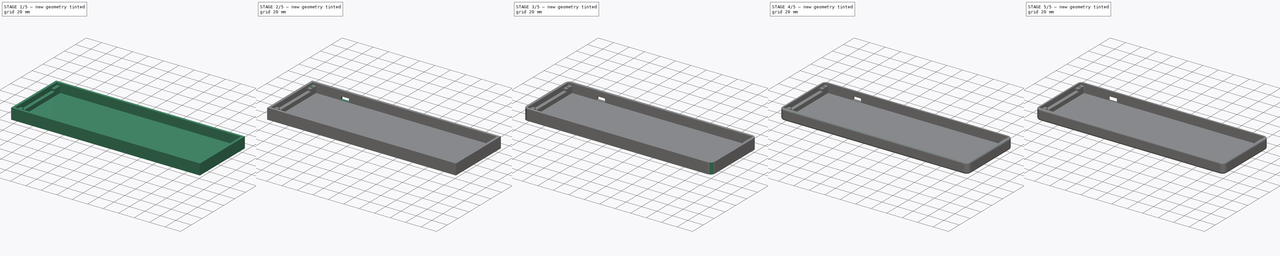
[diagram: build sequence overview — one tinted view per stage of 5, left to right]
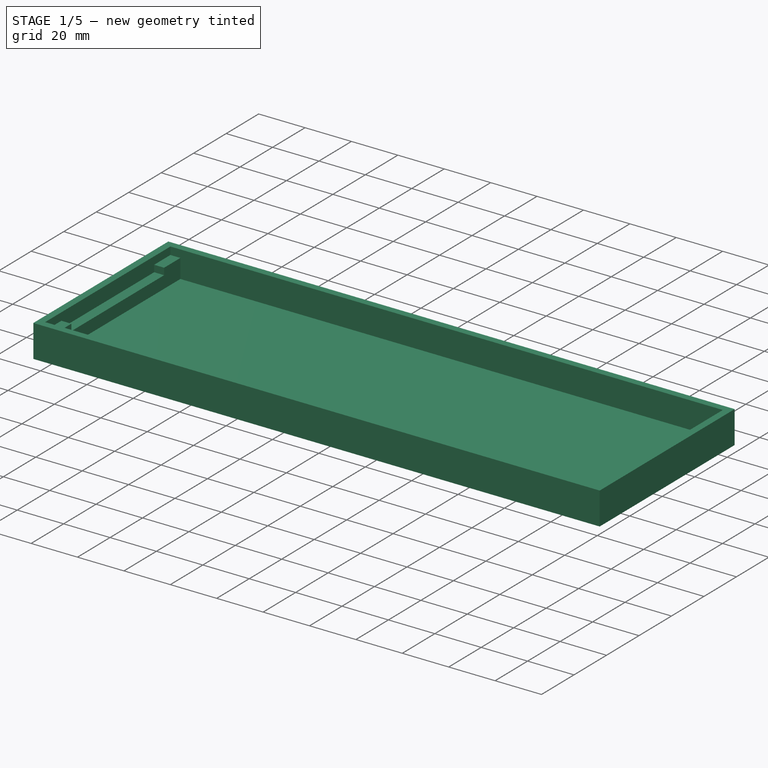
[diagram: stage 1 of 5 — iso view after this stage's code; geometry added in this stage tinted green]
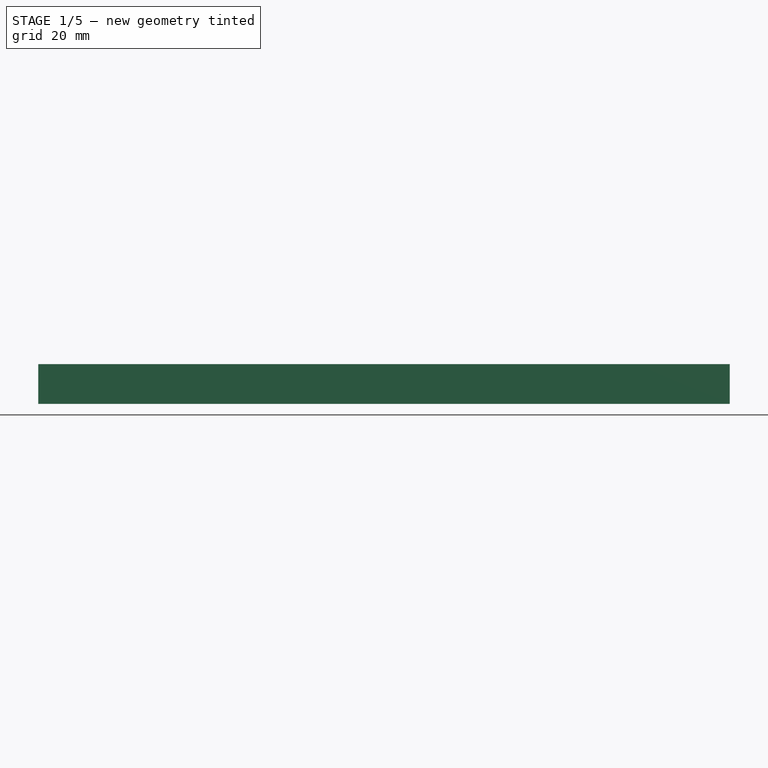
[diagram: stage 1 of 5 — front view after this stage's code; geometry added in this stage tinted green]
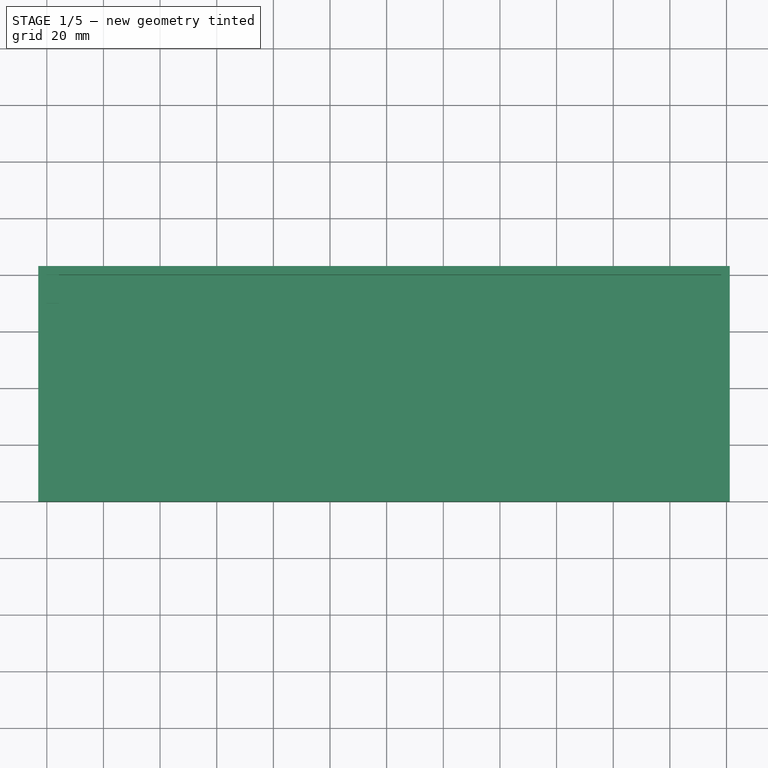
[diagram: stage 1 of 5 — top view after this stage's code; geometry added in this stage tinted green]
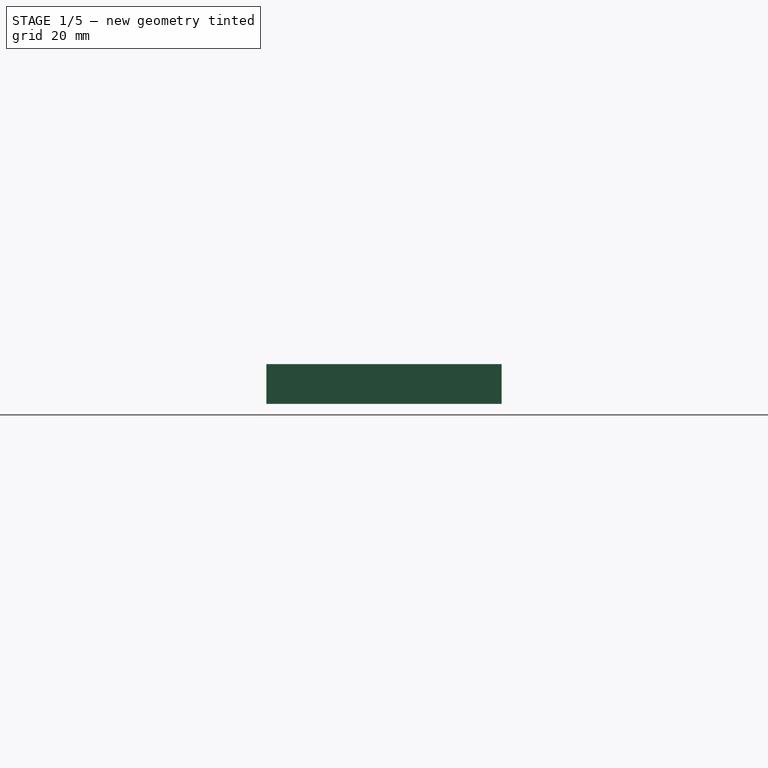
[diagram: stage 1 of 5 — right view after this stage's code; geometry added in this stage tinted green]
FCSTD DOCUMENT  (FreeCAD 1.0R39319 (Git))
Label: low-profile-case
License: All rights reserved
LicenseURL: https://en.wikipedia.org/wiki/All_rights_reserved
objects: Part::Feature×27, Sketcher::SketchObject×9, PartDesign::Fillet×6, PartDesign::Pad×4, PartDesign::Pocket×4, App::Part×2, PartDesign::Hole×1, PartDesign::Body×1
note: 91 computed .brp shape members not serialized (recipe doc carries the construction recipe); baked Part::Feature solids carry a one-line shape summary decoded from their .brp

FEATURE [Sketcher::SketchObject] Sketch001
  ArcFitTolerance = 1e-06
  AttachmentSupport = -> [XY_Plane]
  FullyConstrained = true
  MakeInternals = false
  MapMode = 5
  sketch-geometry (8):
    g0: LineSegment StartX=0 StartY=0 StartZ=0 EndX=0 EndY=-77.1 EndZ=0
    g1: LineSegment StartX=0 StartY=-77.1 StartZ=0 EndX=238.13 EndY=-77.1 EndZ=0
    g2: LineSegment StartX=238.13 StartY=-77.1 StartZ=0 EndX=238.13 EndY=0 EndZ=0
    g3: LineSegment StartX=238.13 StartY=0 StartZ=0 EndX=0 EndY=0 EndZ=0
    g4: LineSegment StartX=241.13 StartY=3 StartZ=0 EndX=-3 EndY=3 EndZ=0
    g5: LineSegment StartX=-3 StartY=3 StartZ=0 EndX=-3 EndY=-80.1 EndZ=0
    g6: LineSegment StartX=-3 StartY=-80.1 StartZ=0 EndX=241.13 EndY=-80.1 EndZ=0
    g7: LineSegment StartX=241.13 StartY=-80.1 StartZ=0 EndX=241.13 EndY=3 EndZ=0
  constraints (23):
    c: Coincident(g0,g3)
    c: Coincident(g2,g3)
    c: Coincident(g1,g2)
    c: Coincident(g0,g1)
    c: DistanceX(g3,g3) = 238.13
    c: DistanceY(g0,g0) = 77.1
    c: Horizontal(g3)
    c: Vertical(g0)
    c: Horizontal(g1)
    c: Vertical(g2)
    c: Coincident(g-1,g0)
    c: Coincident(g4,g5)
    c: Coincident(g4,g7)
    c: Coincident(g5,g6)
    c: Coincident(g6,g7)
    c: DistanceX(g4,g0) = 3
    c: DistanceY(g0,g4) = 3
    c: DistanceY(g6,g1) = 3
    c: DistanceX(g1,g6) = 3
    c: Horizontal(g4)
    c: Vertical(g7)
    c: Vertical(g5)
    c: Horizontal(g6)
FEATURE [Part::Feature] Part__Feature  label="switch_plate_PCB"
  Placement = pos=(-40.5,44.8,9.2) rot=(0,0,1;0rad)
  shape: bbox 237.5 x 76.5 x 1.51 mm, 214 faces (baked)
FEATURE [App::Part] switch_plate_1  label="switch_plate 1"
  Group = -> [Part__Feature]
  Origin = -> Origin001
FEATURE [PartDesign::Pad] Pad  label="frame"
  Direction = (0,0,1)
  Length = 14
  Length2 = 10
  Profile = -> Sketch001
  ReferenceAxis = -> Sketch001 [N_Axis]
  Refine = true
  Suppressed = false
  Type = 0
FEATURE [Sketcher::SketchObject] Sketch004
  ArcFitTolerance = 1e-06
  AttachmentSupport = -> [Pad]
  ExternalGeometry = -> [Pad]
  FullyConstrained = true
  MakeInternals = false
  MapMode = 5
  Placement = pos=(0,0,0) rot=(1,0,0;3.14159rad)
  sketch-geometry (4):
    g0: LineSegment StartX=-3 StartY=80.1 StartZ=0 EndX=-3 EndY=-3 EndZ=0
    g1: LineSegment StartX=-3 StartY=-3 StartZ=0 EndX=241.13 EndY=-3 EndZ=0
    g2: LineSegment StartX=241.13 StartY=-3 StartZ=0 EndX=241.13 EndY=80.1 EndZ=0
    g3: LineSegment StartX=241.13 StartY=80.1 StartZ=0 EndX=-3 EndY=80.1 EndZ=0
  constraints (10):
    c: Coincident(g0,g1)
    c: Coincident(g1,g2)
    c: Coincident(g2,g3)
    c: Coincident(g3,g0)
    c: Vertical(g0)
    c: Vertical(g2)
    c: Horizontal(g1)
    c: Horizontal(g3)
    c: Coincident(g0,g-3)
    c: Coincident(g1,g-4)
FEATURE [PartDesign::Pad] Pad001  label="bottom"
  BaseFeature = -> Pad
  Direction = (0,0,-1)
  Length = 2.5
  Length2 = 10
  Profile = -> Sketch004
  ReferenceAxis = -> Sketch004 [N_Axis]
  Refine = true
  Reversed = true
  Suppressed = false
  Type = 0
FEATURE [Sketcher::SketchObject] Sketch006
  ArcFitTolerance = 1e-06
  AttachmentSupport = -> [Pad001]
  ExternalGeometry = -> [Sketch001,Pad001]
  FullyConstrained = true
  MakeInternals = false
  MapMode = 5
  Placement = pos=(-3,0,0) rot=(0.57735,-0.57735,-0.57735;2.0944rad)
  sketch-geometry (12):
    g0: LineSegment StartX=-3 StartY=10.7 StartZ=0 EndX=-3 EndY=0 EndZ=0
    g1: LineSegment StartX=-3 StartY=0 StartZ=0 EndX=10 EndY=0 EndZ=0
    g2: LineSegment StartX=10 StartY=0 StartZ=0 EndX=10 EndY=10.7 EndZ=0
    g3: LineSegment StartX=10 StartY=10.7 StartZ=0 EndX=-3 EndY=10.7 EndZ=0
    g4: LineSegment StartX=67.1 StartY=10.7 StartZ=0 EndX=67.1 EndY=0 EndZ=0
    g5: LineSegment StartX=67.1 StartY=0 StartZ=0 EndX=80.1 EndY=0 EndZ=0
    g6: LineSegment StartX=80.1 StartY=0 StartZ=0 EndX=80.1 EndY=10.7 EndZ=0
    g7: LineSegment StartX=80.1 StartY=10.7 StartZ=0 EndX=67.1 EndY=10.7 EndZ=0
    g8: LineSegment StartX=10 StartY=7.8 StartZ=0 EndX=10 EndY=0 EndZ=0
    g9: LineSegment StartX=10 StartY=0 StartZ=0 EndX=67.1 EndY=0 EndZ=0
    g10: LineSegment StartX=67.1 StartY=0 StartZ=0 EndX=67.1 EndY=7.8 EndZ=0
    g11: LineSegment StartX=67.1 StartY=7.8 StartZ=0 EndX=10 EndY=7.8 EndZ=0
  constraints (32):
    c: Coincident(g0,g1)
    c: Coincident(g1,g2)
    c: Coincident(g2,g3)
    c: Coincident(g3,g0)
    c: Vertical(g0)
    c: Vertical(g2)
    c: Horizontal(g1)
    c: Horizontal(g3)
    c: DistanceY(g0,g0) = 10.7
    c: DistanceX(g3,g3) = 13
    c: Coincident(g0,g-4)
    c: Coincident(g4,g5)
    c: Coincident(g5,g6)
    c: Coincident(g6,g7)
    c: Coincident(g7,g4)
    c: Vertical(g4)
    c: Vertical(g6)
    c: Horizontal(g5)
    c: Horizontal(g7)
    c: Distance(g4,g6) = 13
    c: Distance(g5,g7) = 10.7
    c: Coincident(g5,g-5)
    c: Coincident(g8,g9)
    c: Coincident(g9,g10)
    c: Coincident(g10,g11)
    c: Coincident(g11,g8)
    c: Vertical(g8)
    c: Vertical(g10)
    c: Horizontal(g11)
    c: DistanceY(g8,g8) = 7.8
    c: Coincident(g9,g4)
    c: Coincident(g8,g1)
FEATURE [PartDesign::Pad] Pad002  label="left_side"
  BaseFeature = -> Pad001
  Direction = (-1,0,0)
  Length = 7.3
  Length2 = 10
  Profile = -> Sketch006
  ReferenceAxis = -> Sketch006 [N_Axis]
  Refine = true
  Reversed = true
  Suppressed = false
  Type = 0
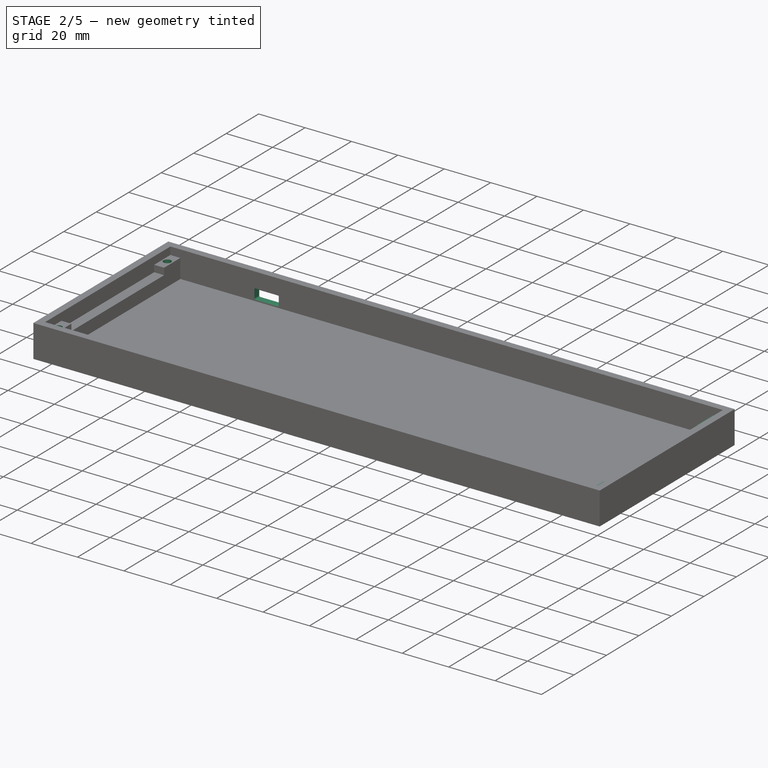
[diagram: stage 2 of 5 — iso view after this stage's code; geometry added in this stage tinted green]
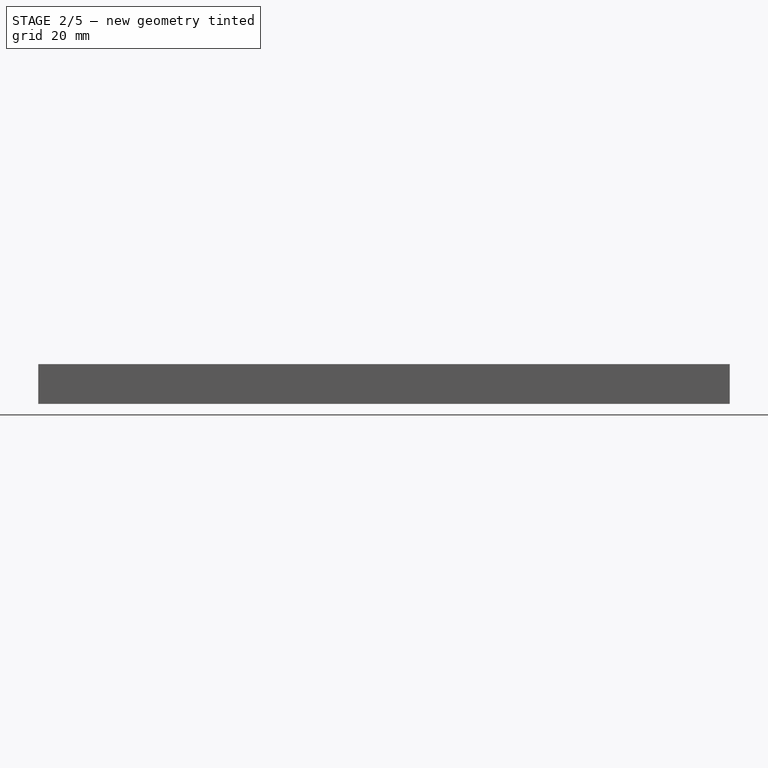
[diagram: stage 2 of 5 — front view after this stage's code; geometry added in this stage tinted green]
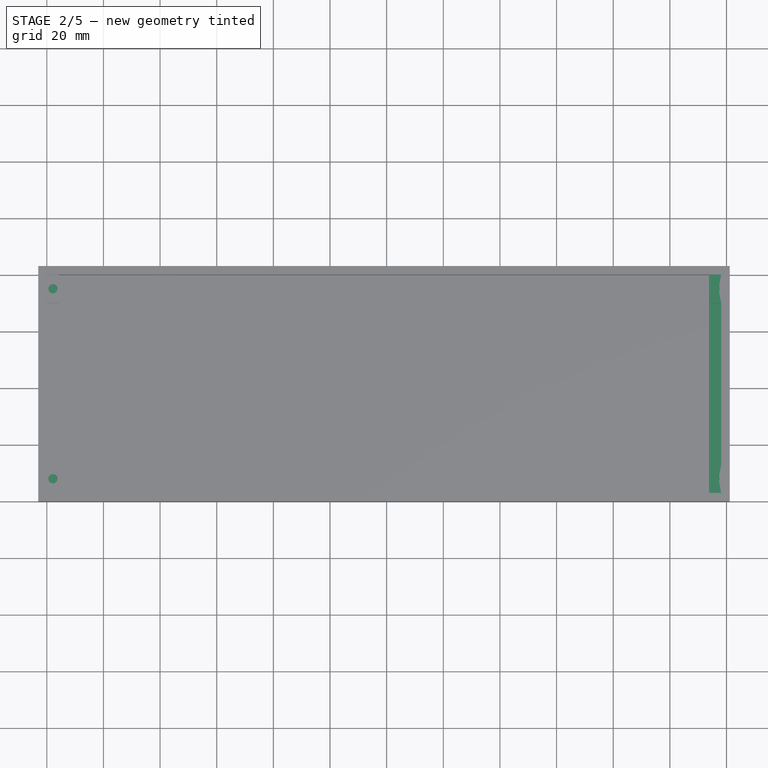
[diagram: stage 2 of 5 — top view after this stage's code; geometry added in this stage tinted green]
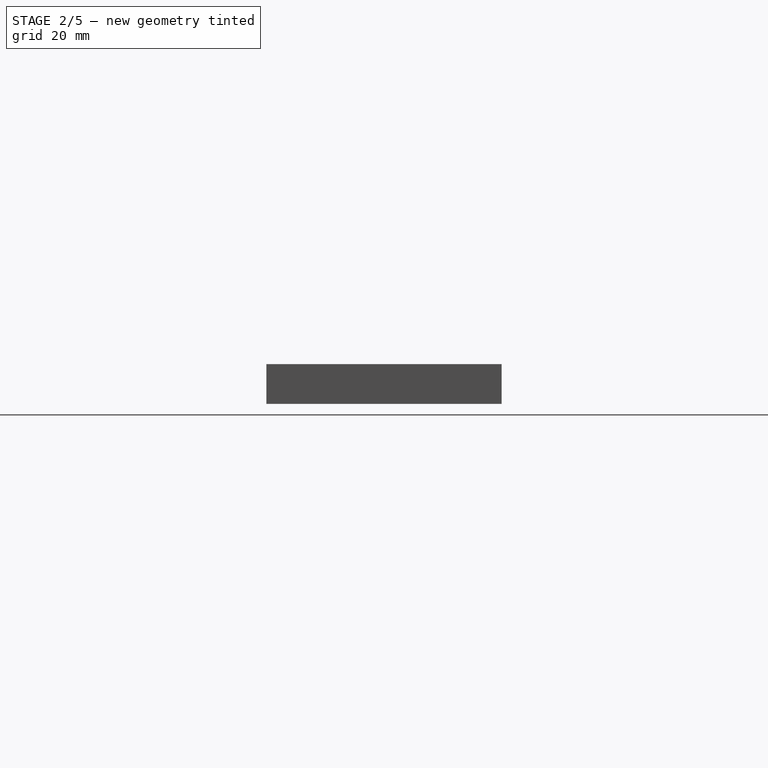
[diagram: stage 2 of 5 — right view after this stage's code; geometry added in this stage tinted green]
FEATURE [Sketcher::SketchObject] Sketch
  ArcFitTolerance = 1e-06
  AttachmentSupport = -> [Pad002]
  ExternalGeometry = -> [Pad002]
  FullyConstrained = true
  MakeInternals = false
  MapMode = 5
  Placement = pos=(241.13,0,0) rot=(0.57735,0.57735,0.57735;2.0944rad)
  sketch-geometry (12):
    g0: LineSegment StartX=-80.1 StartY=10.7 StartZ=0 EndX=-80.1 EndY=0 EndZ=0
    g1: LineSegment StartX=-80.1 StartY=0 StartZ=0 EndX=-67.1 EndY=0 EndZ=0
    g2: LineSegment StartX=-67.1 StartY=0 StartZ=0 EndX=-67.1 EndY=10.7 EndZ=0
    g3: LineSegment StartX=-67.1 StartY=10.7 StartZ=0 EndX=-80.1 EndY=10.7 EndZ=0
    g4: LineSegment StartX=-10 StartY=10.7 StartZ=0 EndX=-10 EndY=0 EndZ=0
    g5: LineSegment StartX=-10 StartY=0 StartZ=0 EndX=3 EndY=0 EndZ=0
    g6: LineSegment StartX=3 StartY=0 StartZ=0 EndX=3 EndY=10.7 EndZ=0
    g7: LineSegment StartX=3 StartY=10.7 StartZ=0 EndX=-10 EndY=10.7 EndZ=0
    g8: LineSegment StartX=-67.1 StartY=7.8 StartZ=0 EndX=-67.1 EndY=0 EndZ=0
    g9: LineSegment StartX=-67.1 StartY=0 StartZ=0 EndX=-10 EndY=0 EndZ=0
    g10: LineSegment StartX=-10 StartY=0 StartZ=0 EndX=-10 EndY=7.8 EndZ=0
    g11: LineSegment StartX=-10 StartY=7.8 StartZ=0 EndX=-67.1 EndY=7.8 EndZ=0
  constraints (32):
    c: Coincident(g0,g1)
    c: Coincident(g1,g2)
    c: Coincident(g2,g3)
    c: Coincident(g3,g0)
    c: Vertical(g0)
    c: Vertical(g2)
    c: Horizontal(g1)
    c: Horizontal(g3)
    c: Distance(g0,g2) = 13
    c: Distance(g1,g3) = 10.7
    c: Coincident(g4,g5)
    c: Coincident(g5,g6)
    c: Coincident(g6,g7)
    c: Coincident(g7,g4)
    c: Vertical(g4)
    c: Vertical(g6)
    c: Horizontal(g5)
    c: Horizontal(g7)
    c: Distance(g4,g6) = 13
    c: Distance(g5,g7) = 10.7
    c: Coincident(g0,g-3)
    c: Coincident(g5,g-4)
    c: Coincident(g8,g9)
    c: Coincident(g9,g10)
    c: Coincident(g10,g11)
    c: Coincident(g11,g8)
    c: Vertical(g8)
    c: Vertical(g10)
    c: Horizontal(g11)
    c: Distance(g9,g11) = 7.8
    c: Coincident(g8,g1)
    c: Coincident(g4,g9)
FEATURE [PartDesign::Pad] Pad003  label="right_side"
  BaseFeature = -> Pad002
  Direction = (1,0,0)
  Length = 7.3
  Length2 = 10
  Profile = -> Sketch
  ReferenceAxis = -> Sketch [N_Axis]
  Refine = true
  Reversed = true
  Suppressed = false
  Type = 0
FEATURE [Sketcher::SketchObject] Sketch007
  ArcFitTolerance = 1e-06
  AttachmentSupport = -> [Pad003]
  ExternalGeometry = -> [Pad003]
  FullyConstrained = true
  MakeInternals = false
  MapMode = 5
  Placement = pos=(0,0,10.7) rot=(0,0,1;0rad)
  sketch-geometry (4):
    g0: Circle CenterX=2.14783 CenterY=-5 CenterZ=0 NormalX=0 NormalY=0 NormalZ=1 AngleXU=0 Radius=1.6
    g1: Circle CenterX=2.15362 CenterY=-72.1 CenterZ=0 NormalX=0 NormalY=0 NormalZ=1 AngleXU=0 Radius=1.6
    g2: Circle CenterX=235.977 CenterY=-5 CenterZ=0 NormalX=0 NormalY=0 NormalZ=1 AngleXU=0 Radius=1.6
    g3: Circle CenterX=235.976 CenterY=-72.1 CenterZ=0 NormalX=0 NormalY=0 NormalZ=1 AngleXU=0 Radius=1.6
  constraints (12):
    c: Diameter(g0) = 3.2
    c: Diameter(g1) = 3.2
    c: Diameter(g2) = 3.2
    c: Diameter(g3) = 3.2
    c: DistanceX(g0) = 2.14783
    c: DistanceY(g0) = -5
    c: DistanceX(g1) = 2.15362
    c: DistanceY(g1) = -72.1
    c: DistanceX(g3) = 235.976
    c: DistanceY(g3) = -72.1
    c: DistanceX(g2) = 235.977
    c: DistanceY(g2) = -5
FEATURE [PartDesign::Hole] Hole  label="body_hole"
  BaseFeature = -> Pad003
  CustomThreadClearance = 0
  Depth = 2.2
  DepthType = 0
  Diameter = 3.2
  DrillForDepth = false
  DrillPoint = 0
  DrillPointAngle = 118
  HoleCutCountersinkAngle = 90
  HoleCutCustomValues = false
  HoleCutDepth = 0
  HoleCutDiameter = 6.1
  HoleCutType = 0
  ModelThread = false
  Profile = -> Sketch007
  Refine = true
  Suppressed = false
  Tapered = false
  TaperedAngle = 90
  ThreadClass = 0
  ThreadDepth = 2.2
  ThreadDepthType = 0
  ThreadDirection = 0
  ThreadFit = 0
  ThreadSize = 0
  ThreadType = 0
  Threaded = false
  UseCustomThreadClearance = false
FEATURE [Part::Feature] Part__Feature001  label="C_0402_1005Metric"
  Placement = pos=(88.3606,-77.8394,-0.085) rot=(0.92388,0.382683,0;3.14159rad)
  shape: bbox 1.061 x 1.061 x 0.5 mm, 28 faces (baked)
FEATURE [Part::Feature] Part__Feature002  label="C_0402_1005Metric001"
  Placement = pos=(92,-85.71,-0.085) rot=(0.92388,0.382683,0;3.14159rad)
  shape: bbox 1.061 x 1.061 x 0.5 mm, 28 faces (baked)
FEATURE [Part::Feature] Part__Feature003  label="R_0402_1005Metric"
  Placement = pos=(93.6,-87.61,-0.085) rot=(0.707107,-0.707107,0;3.14159rad)
  shape: bbox 0.5 x 1 x 0.35 mm, 26 faces (baked)
FEATURE [Part::Feature] Part__Feature004  label="C_0402_1005Metric002"
  Placement = pos=(86.5394,-77.3394,-0.085) rot=(0.382683,0.92388,0;3.14159rad)
  shape: bbox 1.061 x 1.061 x 0.5 mm, 28 faces (baked)
FEATURE [Part::Feature] Part__Feature005  label="C_0402_1005Metric003"
  Placement = pos=(88.8,-89.78,-0.085) rot=(0.707107,-0.707107,0;3.14159rad)
  shape: bbox 0.5 x 1 x 0.5 mm, 28 faces (baked)
FEATURE [Part::Feature] Part__Feature006  label="C_0402_1005Metric004"
  Placement = pos=(94.63,-81.14,-0.085) rot=(1,0,0;3.14159rad)
  shape: bbox 1 x 0.5 x 0.5 mm, 28 faces (baked)
FEATURE [Part::Feature] Part__Feature007  label="QFN-56-1EP_7x7mm_P0.4mm_EP3.2x3.2mm"
  Placement = pos=(86.4078,-84.6692,-0.085) rot=(0.382683,0.92388,0;3.14159rad)
  shape: bbox 9.829 x 9.829 x 0.95 mm, 350 faces (baked)
FEATURE [Part::Feature] Part__Feature008  label="R_0402_1005Metric001"
  Placement = pos=(83.4869,-54.7019,-0.085) rot=(0.707107,0.707107,0;3.14159rad)
  shape: bbox 0.5 x 1 x 0.35 mm, 26 faces (baked)
FEATURE [Part::Feature] Part__Feature009  label="C_0402_1005Metric005"
  Placement = pos=(98.42,-84.9,-0.085) rot=(0,1,0;3.14159rad)
  shape: bbox 1 x 0.5 x 0.5 mm, 28 faces (baked)
FEATURE [Part::Feature] Part__Feature010  label="Fuse_1206_3216Metric"
  Placement = pos=(84.9,-64.605,-0.085) rot=(0.707107,-0.707107,0;3.14159rad)
  shape: bbox 1.6 x 3.2 x 0.55 mm, 26 faces (baked)
FEATURE [Part::Feature] Part__Feature011  label="SOT-23-3"
  Placement = pos=(99.9,-82.3375,-0.085) rot=(0.707107,0.707107,0;3.14159rad)
  shape: bbox 3 x 2.5 x 1.2 mm, 69 faces (baked)
FEATURE [Part::Feature] Part__Feature012  label="C_0402_1005Metric006"
  Placement = pos=(91.73,-79.9,-0.085) rot=(0.92388,0.382683,0;3.14159rad)
  shape: bbox 1.061 x 1.061 x 0.5 mm, 28 faces (baked)
FEATURE [Part::Feature] Part__Feature013  label="C_0402_1005Metric007"
  Placement = pos=(85.0606,-79.4394,-0.085) rot=(-0.382683,0.92388,0;3.14159rad)
  shape: bbox 1.061 x 1.061 x 0.5 mm, 28 faces (baked)
FEATURE [Part::Feature] Part__Feature014  label="R_0402_1005Metric002"
  Placement = pos=(90.47,-79.72,-0.085) rot=(-0.382683,0.92388,0;3.14159rad)
  shape: bbox 1.061 x 1.061 x 0.35 mm, 26 faces (baked)
FEATURE [Part::Feature] Part__Feature015  label="R_0402_1005Metric003"
  Placement = pos=(80.6294,-54.7019,-0.085) rot=(0.707107,0.707107,0;3.14159rad)
  shape: bbox 0.5 x 1 x 0.35 mm, 26 faces (baked)
FEATURE [Part::Feature] Part__Feature016  label="R_0402_1005Metric004"
  Placement = pos=(89.73,-78.97,-0.085) rot=(-0.382683,0.92388,0;3.14159rad)
  shape: bbox 1.061 x 1.061 x 0.35 mm, 26 faces (baked)
FEATURE [Part::Feature] Part__Feature017  label="C_0402_1005Metric008"
  Placement = pos=(81.7,-81.4,-0.085) rot=(0.382683,0.92388,0;3.14159rad)
  shape: bbox 1.061 x 1.061 x 0.5 mm, 28 faces (baked)
FEATURE [Part::Feature] Part__Feature018  label="Resonator_SMD_Murata_CSTxExxV-3Pin_3.0x1.1mm"
  Placement = pos=(76.8515,-87.7515,-0.085) rot=(0.382683,0.92388,0;3.14159rad)
  shape: bbox 3.182 x 3.182 x 0.9 mm, 86 faces (baked)
FEATURE [Part::Feature] Part__Feature019  label="R_0402_1005Metric005"
  Placement = pos=(79,-87.2,-0.085) rot=(0.92388,-0.382683,0;3.14159rad)
  shape: bbox 1.061 x 1.061 x 0.35 mm, 26 faces (baked)
FEATURE [Part::Feature] Part__Feature020  label="C_0402_1005Metric009"
  Placement = pos=(85.7894,-78.0594,-0.085) rot=(0.382683,0.92388,0;3.14159rad)
  shape: bbox 1.061 x 1.061 x 0.5 mm, 28 faces (baked)
FEATURE [Part::Feature] Part__Feature021  label="C_0402_1005Metric010"
  Placement = pos=(102.1,-80.78,-0.085) rot=(0.707107,-0.707107,0;3.14159rad)
  shape: bbox 0.5 x 1 x 0.5 mm, 28 faces (baked)
FEATURE [Part::Feature] Part__Feature022  label="R_0402_1005Metric006"
  Placement = pos=(98.39,-86.9,-0.085) rot=(1,0,0;3.14159rad)
  shape: bbox 1 x 0.5 x 0.35 mm, 26 faces (baked)
FEATURE [Part::Feature] Part__Feature023  label="C_0402_1005Metric011"
  Placement = pos=(79.8394,-86.4394,-0.085) rot=(0.382683,0.92388,0;3.14159rad)
  shape: bbox 1.061 x 1.061 x 0.5 mm, 28 faces (baked)
FEATURE [Part::Feature] Part__Feature024  label="C_0402_1005Metric012"
  Placement = pos=(80.5606,-85.7606,-0.085) rot=(0.382683,0.92388,0;3.14159rad)
  shape: bbox 1.061 x 1.061 x 0.5 mm, 28 faces (baked)
FEATURE [Part::Feature] Part__Feature025  label="C_0402_1005Metric013"
  Placement = pos=(98.4,-85.9,-0.085) rot=(0,1,0;3.14159rad)
  shape: bbox 1 x 0.5 x 0.5 mm, 28 faces (baked)
FEATURE [Part::Feature] Part__Feature026  label="rhyl47_pcb_PCB"
  shape: bbox 228.8 x 76.2 x 1.51 mm, 305 faces (baked)
FEATURE [App::Part] rhyl47_pcb_1  label="rhyl47_pcb 1"
  Group = -> [Part__Feature001,Part__Feature002,Part__Feature003,Part__Feature004,Part__Feature005,Part__Feature006,Part__Feature007,Part__Feature008,Part__Feature009,Part__Feature010,Part__Feature011,Part__Feature012,Part__Feature013,Part__Feature014,Part__Feature015,Part__Feature016,Part__Feature017,Part__Feature018,Part__Feature019,Part__Feature020,Part__Feature021,Part__Feature022,Part__Feature023,+3 more]
  Origin = -> Origin002
  Placement = pos=(-40.4,44.9,7.1) rot=(0,0,1;0rad)
FEATURE [Sketcher::SketchObject] Sketch008
  ArcFitTolerance = 1e-06
  AttachmentSupport = -> [Hole]
  FullyConstrained = false
  MakeInternals = false
  MapMode = 5
  Placement = pos=(0,3,0) rot=(0,0.707107,0.707107;3.14159rad)
  sketch-geometry (12):
    g0: LineSegment StartX=-46.7086 StartY=6.99948 StartZ=0 EndX=-46.7086 EndY=3.49948 EndZ=0
    g1: LineSegment StartX=-46.2086 StartY=2.99948 StartZ=0 EndX=-36.7086 EndY=2.99948 EndZ=0
    g2: LineSegment StartX=-36.2086 StartY=3.49948 StartZ=0 EndX=-36.2086 EndY=6.99948 EndZ=0
    g3: LineSegment StartX=-36.7086 StartY=7.49948 StartZ=0 EndX=-46.2086 EndY=7.49948 EndZ=0
    g4: ArcOfCircle CenterX=-46.2086 CenterY=6.99948 CenterZ=0 NormalX=0 NormalY=0 NormalZ=1 AngleXU=0 Radius=0.5 StartAngle=1.5708 EndAngle=3.14159
    g5: GeomPoint [constr] X=-46.7086 Y=7.49948 Z=0
    g6: ArcOfCircle CenterX=-46.2086 CenterY=3.49948 CenterZ=0 NormalX=0 NormalY=0 NormalZ=1 AngleXU=0 Radius=0.5 StartAngle=3.14159 EndAngle=4.71239
    g7: GeomPoint [constr] X=-46.7086 Y=2.99948 Z=0
    g8: ArcOfCircle CenterX=-36.7086 CenterY=6.99948 CenterZ=0 NormalX=0 NormalY=0 NormalZ=1 AngleXU=0 Radius=0.5 StartAngle=5e-16 EndAngle=1.5708
    g9: GeomPoint [constr] X=-36.2086 Y=7.49948 Z=0
    g10: ArcOfCircle CenterX=-36.7086 CenterY=3.49948 CenterZ=0 NormalX=0 NormalY=0 NormalZ=1 AngleXU=0 Radius=0.5 StartAngle=4.71239 EndAngle=6.28319
    g11: GeomPoint [constr] X=-36.2086 Y=2.99948 Z=0
  constraints (26):
    c: Vertical(g0)
    c: Vertical(g2)
    c: Horizontal(g1)
    c: Horizontal(g3)
    c: Distance(g5,g9) = 10.5
    c: Distance(g7,g5) = 4.5
    c: PointOnObject(g5,g3)
    c: PointOnObject(g5,g0)
    c: Tangent(g3,g4) = -1.5708
    c: Tangent(g0,g4) = -1.5708
    c: PointOnObject(g7,g0)
    c: PointOnObject(g7,g1)
    c: Tangent(g0,g6) = -1.5708
    c: Tangent(g1,g6) = -1.5708
    c: PointOnObject(g9,g3)
    c: PointOnObject(g9,g2)
    c: Tangent(g3,g8) = -1.5708
    c: Tangent(g2,g8) = -1.5708
    c: PointOnObject(g11,g1)
    c: PointOnObject(g11,g2)
    c: Tangent(g1,g10) = -1.5708
    c: Tangent(g2,g10) = -1.5708
    c: Radius(g4) = 0.5
    c: Radius(g6) = 0.5
    c: Radius(g8) = 0.5
    c: Radius(g10) = 0.5
FEATURE [PartDesign::Pocket] Pocket  label="usb_pocket"
  BaseFeature = -> Hole
  Direction = (0,-1,2e-16)
  Length = 10.5
  Length2 = 5
  Profile = -> Sketch008
  ReferenceAxis = -> Sketch008 [N_Axis]
  Refine = true
  Suppressed = false
  Type = 0
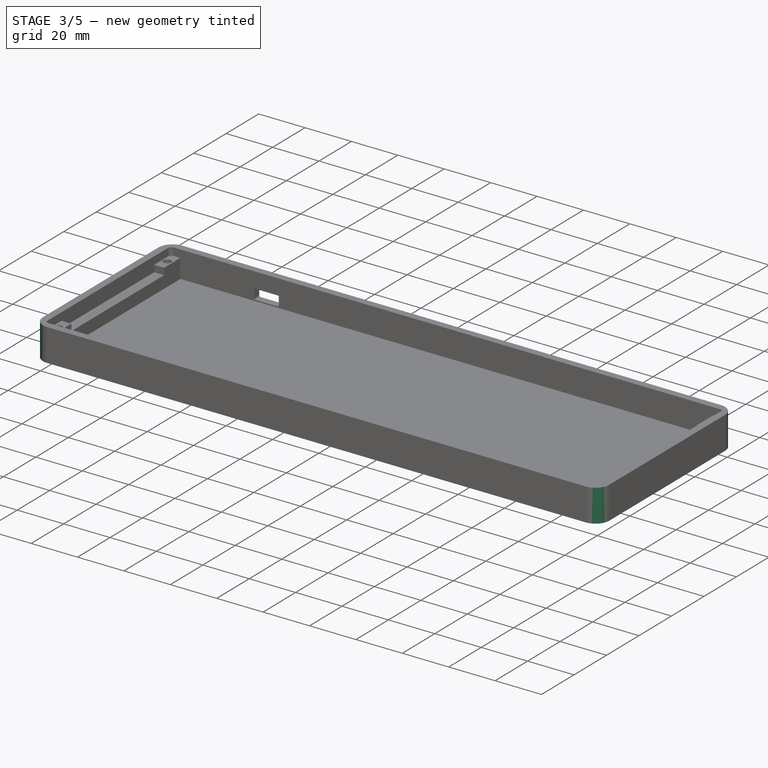
[diagram: stage 3 of 5 — iso view after this stage's code; geometry added in this stage tinted green]
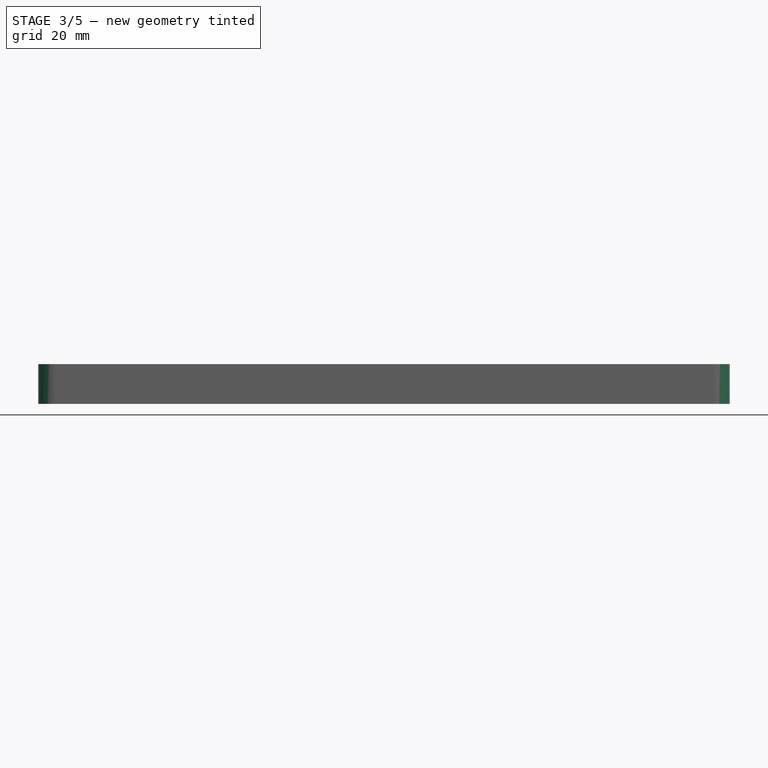
[diagram: stage 3 of 5 — front view after this stage's code; geometry added in this stage tinted green]
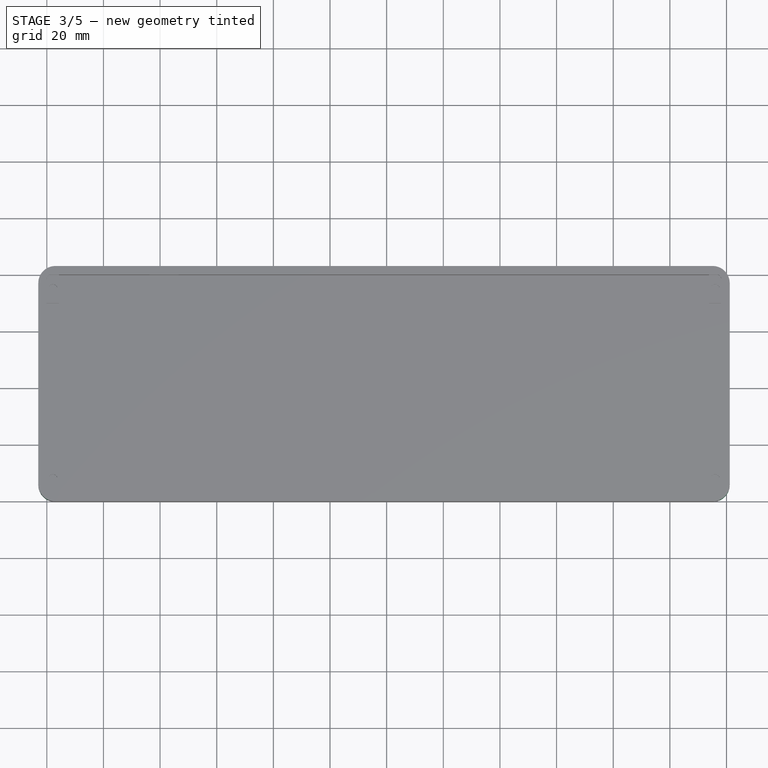
[diagram: stage 3 of 5 — top view after this stage's code; geometry added in this stage tinted green]
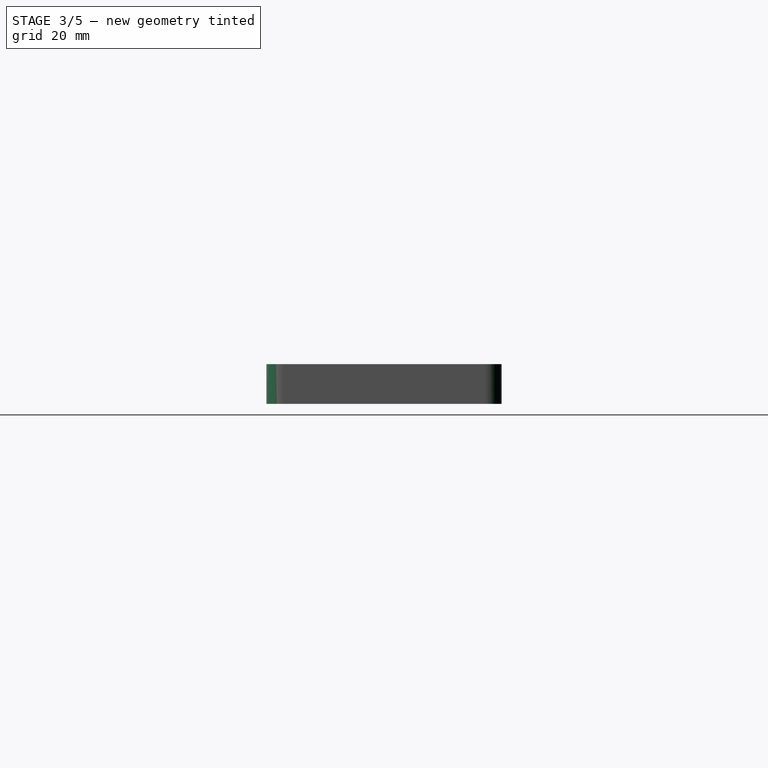
[diagram: stage 3 of 5 — right view after this stage's code; geometry added in this stage tinted green]
FEATURE [Sketcher::SketchObject] Sketch009
  ArcFitTolerance = 1e-06
  AttachmentSupport = -> [Pocket]
  ExternalGeometry = -> [Pocket,Sketch]
  FullyConstrained = false
  MakeInternals = false
  MapMode = 5
  Placement = pos=(0,0,0) rot=(1,0,0;3.14159rad)
  sketch-geometry (44):
    g0: LineSegment StartX=9.46796 StartY=67.3 StartZ=0 EndX=9.46796 EndY=65.8305 EndZ=0
    g1: LineSegment StartX=10.468 StartY=64.8305 StartZ=0 EndX=38.6926 EndY=64.8305 EndZ=0
    g2: LineSegment StartX=39.6926 StartY=65.8305 StartZ=0 EndX=39.6926 EndY=67.3 EndZ=0
    g3: LineSegment StartX=38.6926 StartY=68.3 StartZ=0 EndX=10.468 EndY=68.3 EndZ=0
    g4: LineSegment StartX=9.59281 StartY=11.2971 StartZ=0 EndX=9.59713 EndY=9.79712 EndZ=0
    g5: LineSegment StartX=10.5971 StartY=8.8 StartZ=0 EndX=38.5899 EndY=8.8 EndZ=0
    g6: LineSegment StartX=39.5899 StartY=9.8 StartZ=0 EndX=39.5899 EndY=11.3 EndZ=0
    g7: LineSegment StartX=38.5899 StartY=12.3 StartZ=0 EndX=10.5928 EndY=12.3 EndZ=0
    g8: LineSegment StartX=198.6 StartY=11.304 StartZ=0 EndX=198.6 EndY=9.80401 EndZ=0
    g9: LineSegment StartX=199.6 StartY=8.80401 StartZ=0 EndX=227.6 EndY=8.80401 EndZ=0
    g10: LineSegment StartX=228.6 StartY=9.80401 StartZ=0 EndX=228.6 EndY=11.304 EndZ=0
    g11: LineSegment StartX=227.6 StartY=12.304 StartZ=0 EndX=199.6 EndY=12.304 EndZ=0
    g12: ArcOfCircle CenterX=10.5928 CenterY=11.3 CenterZ=0 NormalX=0 NormalY=0 NormalZ=1 AngleXU=0 Radius=1 StartAngle=1.5708 EndAngle=3.14447
    g13: GeomPoint [constr] X=9.58993 Y=12.3 Z=0
    g14: ArcOfCircle CenterX=10.5971 CenterY=9.8 CenterZ=0 NormalX=0 NormalY=0 NormalZ=1 AngleXU=0 Radius=1 StartAngle=3.14447 EndAngle=4.71239
    g15: GeomPoint [constr] X=9.6 Y=8.8 Z=0
    g16: ArcOfCircle CenterX=38.5899 CenterY=11.3 CenterZ=0 NormalX=0 NormalY=0 NormalZ=1 AngleXU=0 Radius=1 StartAngle=8e-16 EndAngle=1.5708
    g17: GeomPoint [constr] X=39.5899 Y=12.3 Z=0
    g18: ArcOfCircle CenterX=38.5899 CenterY=9.8 CenterZ=0 NormalX=0 NormalY=0 NormalZ=1 AngleXU=0 Radius=1 StartAngle=4.71239 EndAngle=6.28319
    g19: GeomPoint [constr] X=39.5899 Y=8.8 Z=0
    g20: ArcOfCircle CenterX=10.468 CenterY=67.3 CenterZ=0 NormalX=0 NormalY=0 NormalZ=1 AngleXU=0 Radius=1 StartAngle=1.5708 EndAngle=3.14159
    g21: ArcOfCircle CenterX=10.468 CenterY=65.8305 CenterZ=0 NormalX=0 NormalY=0 NormalZ=1 AngleXU=0 Radius=1 StartAngle=3.14159 EndAngle=4.71239
    g22: ArcOfCircle CenterX=38.6926 CenterY=67.3 CenterZ=0 NormalX=0 NormalY=0 NormalZ=1 AngleXU=0 Radius=1 StartAngle=0 EndAngle=1.5708
    g23: ArcOfCircle CenterX=38.6926 CenterY=65.8305 CenterZ=0 NormalX=0 NormalY=0 NormalZ=1 AngleXU=0 Radius=1 StartAngle=4.71239 EndAngle=6.28319
    g24: ArcOfCircle CenterX=199.6 CenterY=11.304 CenterZ=0 NormalX=0 NormalY=0 NormalZ=1 AngleXU=0 Radius=1 StartAngle=1.5708 EndAngle=3.14159
    g25: GeomPoint [constr] X=198.6 Y=12.304 Z=0
    g26: ArcOfCircle CenterX=199.6 CenterY=9.80401 CenterZ=0 NormalX=0 NormalY=0 NormalZ=1 AngleXU=0 Radius=1 StartAngle=3.14159 EndAngle=4.71239
    g27: GeomPoint [constr] X=198.6 Y=8.80401 Z=0
    g28: ArcOfCircle CenterX=227.6 CenterY=11.304 CenterZ=0 NormalX=0 NormalY=0 NormalZ=1 AngleXU=0 Radius=1 StartAngle=5e-16 EndAngle=1.5708
    g29: GeomPoint [constr] X=228.6 Y=12.304 Z=0
    g30: ArcOfCircle CenterX=227.6 CenterY=9.80401 CenterZ=0 NormalX=0 NormalY=0 NormalZ=1 AngleXU=0 Radius=1 StartAngle=4.71239 EndAngle=6.28319
    g31: GeomPoint [constr] X=228.6 Y=8.80401 Z=0
    g32: LineSegment StartX=198.6 StartY=67.3 StartZ=0 EndX=198.6 EndY=65.8 EndZ=0
    g33: LineSegment StartX=199.6 StartY=64.8 StartZ=0 EndX=227.6 EndY=64.8 EndZ=0
    g34: LineSegment StartX=228.6 StartY=65.8 StartZ=0 EndX=228.6 EndY=67.3 EndZ=0
    g35: LineSegment StartX=227.6 StartY=68.3 StartZ=0 EndX=199.6 EndY=68.3 EndZ=0
    g36: ArcOfCircle CenterX=199.6 CenterY=67.3 CenterZ=0 NormalX=0 NormalY=0 NormalZ=1 AngleXU=0 Radius=1 StartAngle=1.5708 EndAngle=3.14159
    g37: GeomPoint [constr] X=198.6 Y=68.3 Z=0
    g38: ArcOfCircle CenterX=199.6 CenterY=65.8 CenterZ=0 NormalX=0 NormalY=0 NormalZ=1 AngleXU=0 Radius=1 StartAngle=3.14159 EndAngle=4.71239
    g39: GeomPoint [constr] X=198.6 Y=64.8 Z=0
    g40: ArcOfCircle CenterX=227.6 CenterY=67.3 CenterZ=0 NormalX=0 NormalY=0 NormalZ=1 AngleXU=0 Radius=1 StartAngle=0 EndAngle=1.5708
    g41: GeomPoint [constr] X=228.6 Y=68.3 Z=0
    g42: ArcOfCircle CenterX=227.6 CenterY=65.8 CenterZ=0 NormalX=0 NormalY=0 NormalZ=1 AngleXU=0 Radius=1 StartAngle=4.71239 EndAngle=6.28319
    g43: GeomPoint [constr] X=228.6 Y=64.8 Z=0
  constraints (96):
    c: Vertical(g6)
    c: Horizontal(g5)
    c: Horizontal(g7)
    c: Distance(g13,g17) = 30
    c: Distance(g15,g13) = 3.5
    c: Vertical(g8)
    c: Vertical(g10)
    c: Horizontal(g9)
    c: Horizontal(g11)
    c: Distance(g25,g29) = 30
    c: Distance(g27,g25) = 3.5
    c: DistanceX(g15) = 9.6
    c: DistanceY(g15) = 8.8
    c: DistanceX(g29) = 228.6
    c: PointOnObject(g13,g7)
    c: PointOnObject(g13,g4)
    c: Tangent(g7,g12) = -1.5708
    c: Tangent(g4,g12) = -1.5708
    c: PointOnObject(g15,g5)
    c: PointOnObject(g15,g4)
    c: Tangent(g5,g14) = -1.5708
    c: Tangent(g4,g14) = -1.5708
    c: PointOnObject(g17,g7)
    c: PointOnObject(g17,g6)
    c: Tangent(g7,g16) = -1.5708
    c: Tangent(g6,g16) = -1.5708
    c: PointOnObject(g19,g5)
    c: PointOnObject(g19,g6)
    c: Tangent(g5,g18) = -1.5708
    c: Tangent(g6,g18) = -1.5708
    c: Radius(g12) = 1
    c: Radius(g14) = 1
    c: Radius(g16) = 1
    c: Radius(g18) = 1
    c: Vertical(g0)
    c: Horizontal(g3)
    c: Horizontal(g1)
    c: Vertical(g2)
    c: Tangent(g3,g20) = -1.5708
    c: Tangent(g0,g20) = -1.5708
    c: Tangent(g0,g21) = -1.5708
    c: Tangent(g1,g21) = -1.5708
    c: Tangent(g3,g22) = -1.5708
    c: Tangent(g2,g22) = -1.5708
    c: Tangent(g1,g23) = -1.5708
    c: Tangent(g2,g23) = -1.5708
    c: Radius(g20) = 1
    c: Radius(g21) = 1
    c: Radius(g22) = 1
    c: Radius(g23) = 1
    c: PointOnObject(g25,g11)
    c: PointOnObject(g25,g8)
    c: Tangent(g11,g24) = -1.5708
    c: Tangent(g8,g24) = -1.5708
    c: PointOnObject(g27,g8)
    c: PointOnObject(g27,g9)
    c: Tangent(g8,g26) = -1.5708
    c: Tangent(g9,g26) = -1.5708
    c: PointOnObject(g29,g11)
    c: PointOnObject(g29,g10)
    c: Tangent(g11,g28) = -1.5708
    c: Tangent(g10,g28) = -1.5708
    c: PointOnObject(g31,g9)
    c: PointOnObject(g31,g10)
    c: Tangent(g9,g30) = -1.5708
    c: Tangent(g10,g30) = -1.5708
    c: Radius(g24) = 1
    c: Radius(g26) = 1
    c: Radius(g28) = 1
    c: Radius(g30) = 1
    c: Vertical(g32)
    c: Vertical(g34)
    c: Horizontal(g33)
    c: Horizontal(g35)
    c: Distance(g37,g41) = 30
    c: Distance(g39,g37) = 3.5
    c: PointOnObject(g37,g35)
    c: PointOnObject(g37,g32)
    c: Tangent(g35,g36) = -1.5708
    c: Tangent(g32,g36) = -1.5708
    c: PointOnObject(g39,g32)
    c: PointOnObject(g39,g33)
    c: Tangent(g32,g38) = -1.5708
    c: Tangent(g33,g38) = -1.5708
    c: PointOnObject(g41,g35)
    c: PointOnObject(g41,g34)
    c: Tangent(g35,g40) = -1.5708
    c: Tangent(g34,g40) = -1.5708
    c: PointOnObject(g43,g33)
    c: PointOnObject(g43,g34)
    c: Tangent(g33,g42) = -1.5708
    c: Tangent(g34,g42) = -1.5708
    c: Radius(g36) = 1
    c: Radius(g38) = 1
    c: Radius(g40) = 1
    c: Radius(g42) = 1
FEATURE [PartDesign::Pocket] Pocket001  label="airfeet"
  BaseFeature = -> Pocket
  Direction = (0,0,1)
  Length = 1.1
  Length2 = 5
  Profile = -> Sketch009
  ReferenceAxis = -> Sketch009 [N_Axis]
  Refine = true
  Suppressed = false
  Type = 0
FEATURE [PartDesign::Fillet] Fillet
  Base = -> Pocket001 [Edge21,Edge11,Edge9,Edge23]
  BaseFeature = -> Pocket001
  Radius = 6
  Refine = true
  SupportTransform = false
  Suppressed = false
  UseAllEdges = false
FEATURE [PartDesign::Fillet] Fillet001
  Base = -> Fillet [Edge42,Edge43,Edge47,Edge55]
  BaseFeature = -> Fillet
  Radius = 1.5
  Refine = true
  SupportTransform = false
  Suppressed = false
  UseAllEdges = false
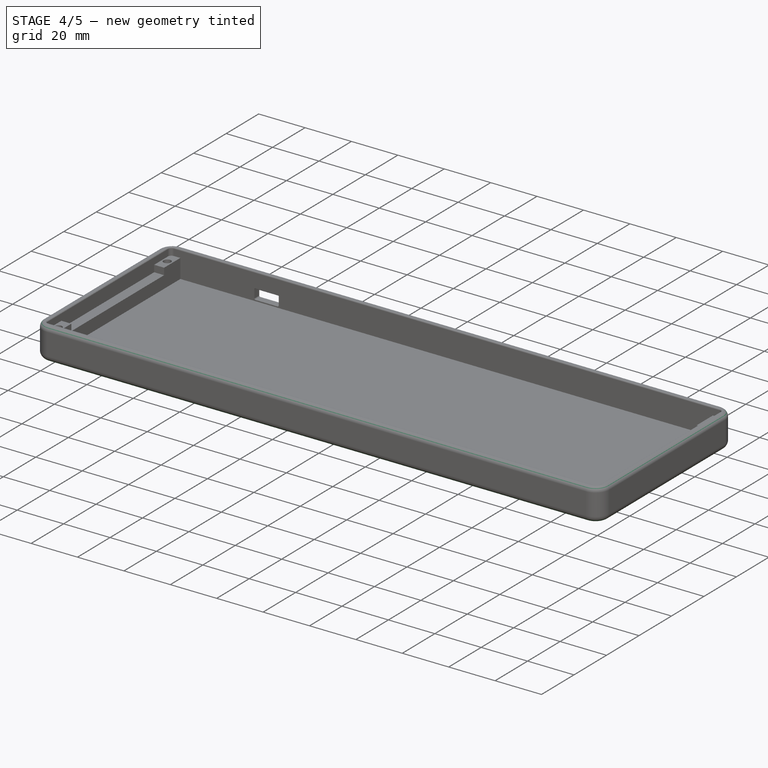
[diagram: stage 4 of 5 — iso view after this stage's code; geometry added in this stage tinted green]
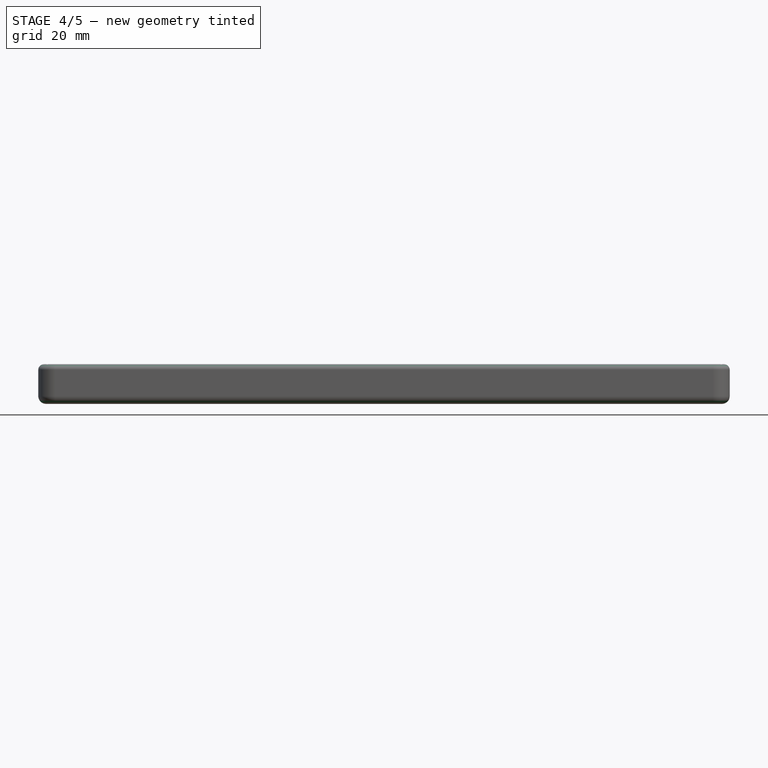
[diagram: stage 4 of 5 — front view after this stage's code; geometry added in this stage tinted green]
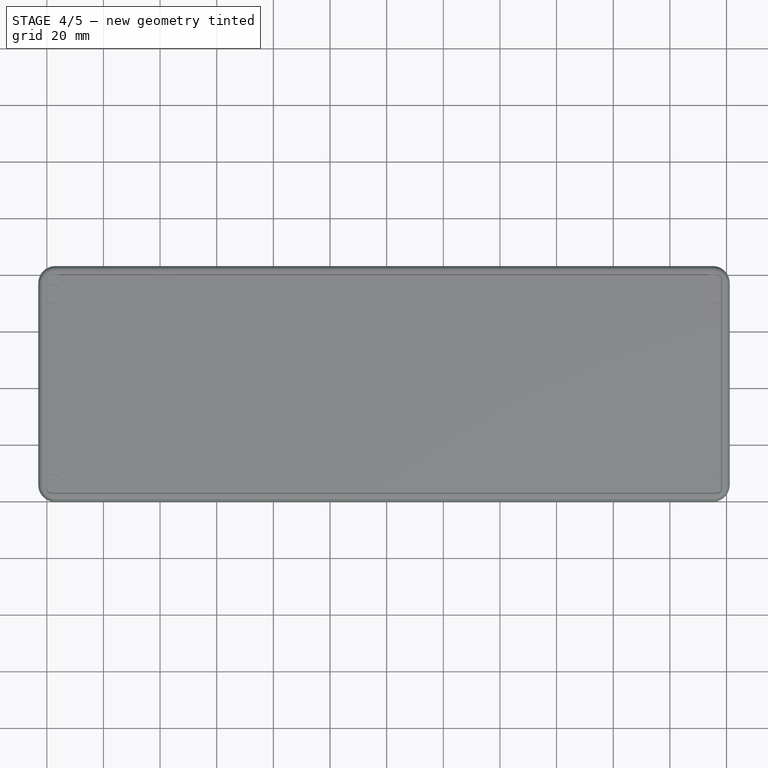
[diagram: stage 4 of 5 — top view after this stage's code; geometry added in this stage tinted green]
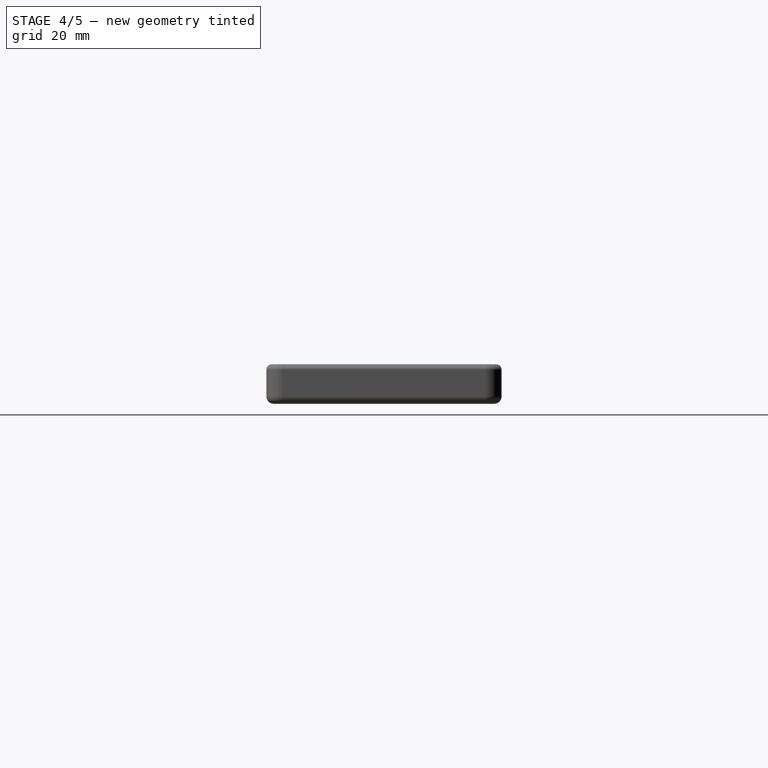
[diagram: stage 4 of 5 — right view after this stage's code; geometry added in this stage tinted green]
FEATURE [PartDesign::Fillet] Fillet002
  Base = -> Fillet001 [Edge16,Edge12,Edge9,Edge13]
  BaseFeature = -> Fillet001
  Radius = 2
  Refine = true
  SupportTransform = false
  Suppressed = false
  UseAllEdges = false
FEATURE [PartDesign::Fillet] Fillet003
  Base = -> Fillet002 [Edge74,Edge81,Edge88,Edge82]
  BaseFeature = -> Fillet002
  Radius = 2.7
  Refine = true
  SupportTransform = false
  Suppressed = false
  UseAllEdges = false
FEATURE [PartDesign::Fillet] Fillet004
  Base = -> Fillet003 [Edge72,Edge69,Edge76,Edge73]
  BaseFeature = -> Fillet003
  Radius = 0.5
  Refine = true
  SupportTransform = false
  Suppressed = false
  UseAllEdges = false
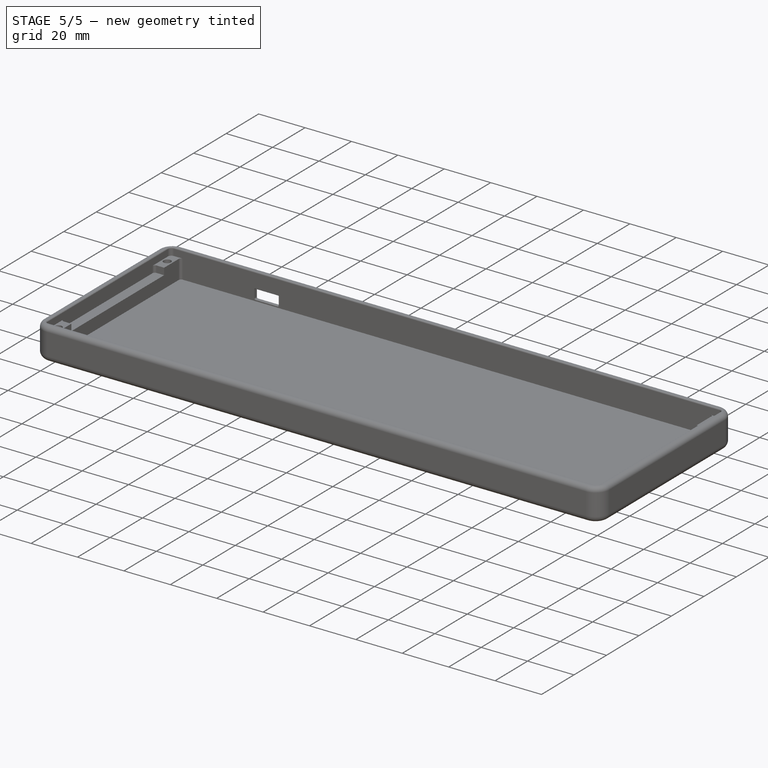
[diagram: stage 5 of 5 — iso view after this stage's code; geometry added in this stage tinted green]
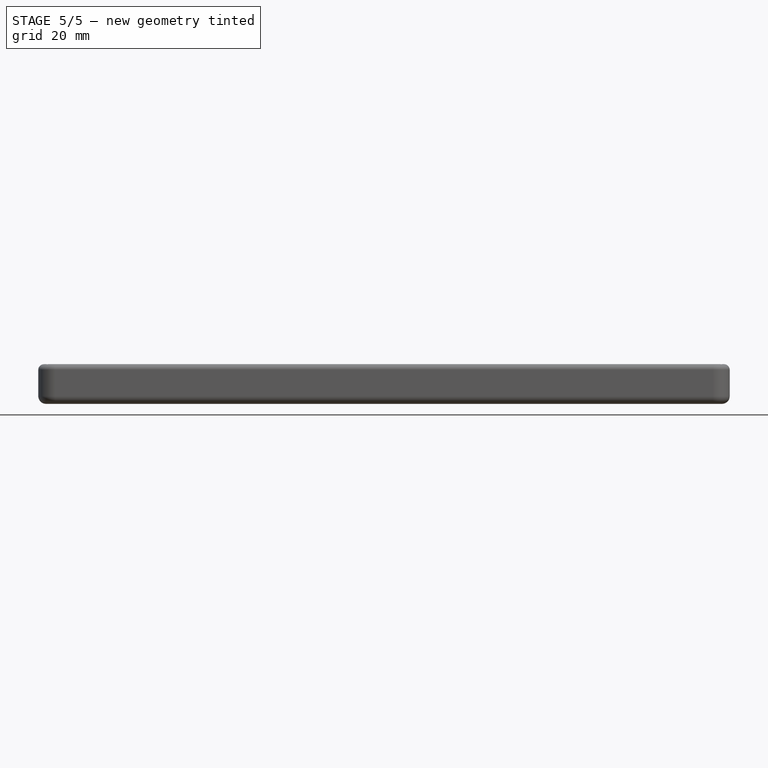
[diagram: stage 5 of 5 — front view after this stage's code; geometry added in this stage tinted green]
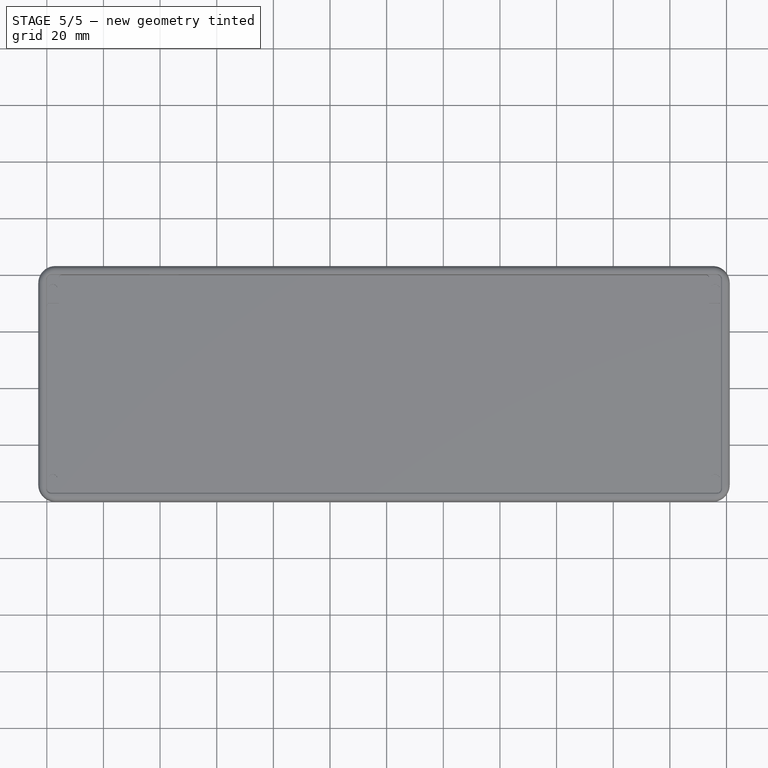
[diagram: stage 5 of 5 — top view after this stage's code; geometry added in this stage tinted green]
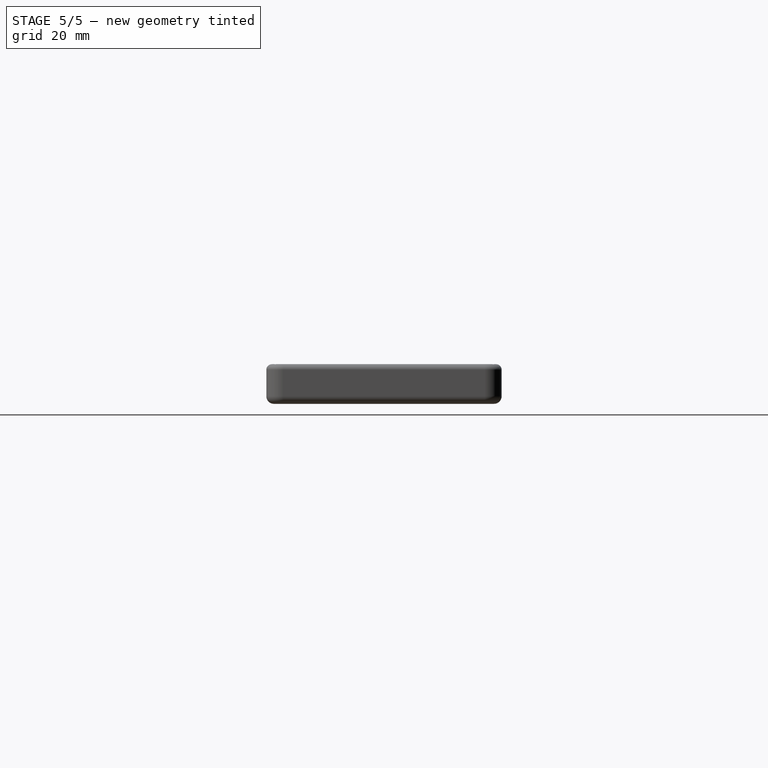
[diagram: stage 5 of 5 — right view after this stage's code; geometry added in this stage tinted green]
FEATURE [PartDesign::Fillet] Fillet005
  Base = -> Fillet004 [Edge59,Edge62,Edge205,Edge202,Edge83,Edge85,Edge172,Edge170]
  BaseFeature = -> Fillet004
  Radius = 1
  Refine = true
  SupportTransform = false
  Suppressed = false
  UseAllEdges = false
FEATURE [Sketcher::SketchObject] Sketch010
  ArcFitTolerance = 1e-06
  AttachmentSupport = -> [Sketch008]
  ExternalGeometry = -> [Pocket]
  FullyConstrained = false
  MakeInternals = false
  MapMode = 2
  Placement = pos=(0,3,0) rot=(0,0.707107,0.707107;3.14159rad)
  sketch-geometry (12):
    g0: GeomPoint [constr] X=-47.4249 Y=7.88725 Z=0
    g1: GeomPoint [constr] X=-47.4249 Y=2.68725 Z=0
    g2: GeomPoint [constr] X=-35.4249 Y=7.88725 Z=0
    g3: GeomPoint [constr] X=-35.4249 Y=2.68725 Z=0
    g4: ArcOfCircle CenterX=-36.7086 CenterY=3.49948 CenterZ=0 NormalX=0 NormalY=0 NormalZ=1 AngleXU=0 Radius=1.93673 StartAngle=4.71239 EndAngle=6.28319
    g5: LineSegment StartX=-34.7718 StartY=3.49948 StartZ=0 EndX=-34.7718 EndY=6.99948 EndZ=0
    g6: ArcOfCircle CenterX=-36.7086 CenterY=6.99948 CenterZ=0 NormalX=0 NormalY=0 NormalZ=1 AngleXU=0 Radius=1.93673 StartAngle=5.03e-14 EndAngle=1.5708
    g7: LineSegment StartX=-36.7086 StartY=8.93621 StartZ=0 EndX=-46.2086 EndY=8.93621 EndZ=0
    g8: ArcOfCircle CenterX=-46.2086 CenterY=6.99948 CenterZ=0 NormalX=0 NormalY=0 NormalZ=1 AngleXU=0 Radius=1.93673 StartAngle=1.5708 EndAngle=3.14159
    g9: LineSegment StartX=-48.1453 StartY=6.99948 StartZ=0 EndX=-48.1453 EndY=3.49948 EndZ=0
    g10: ArcOfCircle CenterX=-46.2086 CenterY=3.49948 CenterZ=0 NormalX=0 NormalY=0 NormalZ=1 AngleXU=0 Radius=1.93673 StartAngle=3.14159 EndAngle=4.71239
    g11: LineSegment StartX=-46.2086 StartY=1.56275 StartZ=0 EndX=-36.7086 EndY=1.56275 EndZ=0
  constraints (10):
    c: Distance(g0,g2) = 12
    c: Distance(g1,g0) = 5.2
    c: Tangent(g4,g5) = -1.5708
    c: Tangent(g4,g11) = -1.5708
    c: Tangent(g5,g6) = -1.5708
    c: Tangent(g6,g7) = -1.5708
    c: Tangent(g7,g8) = -1.5708
    c: Tangent(g8,g9) = -1.5708
    c: Tangent(g9,g10) = -1.5708
    c: Tangent(g10,g11) = -1.5708
FEATURE [PartDesign::Pocket] Pocket002
  BaseFeature = -> Fillet005
  Direction = (0,-1,2e-16)
  Length = 1.5
  Length2 = 5
  Profile = -> Sketch010
  ReferenceAxis = -> Sketch010 [N_Axis]
  Refine = true
  Suppressed = false
  Type = 0
FEATURE [Sketcher::SketchObject] Sketch012
  ArcFitTolerance = 1e-06
  AttachmentSupport = -> [Pocket002]
  FullyConstrained = false
  MakeInternals = false
  MapMode = 2
  sketch-geometry (132):
    g0: LineSegment StartX=4.3 StartY=-15.6666 StartZ=0 EndX=4.3 EndY=-17.2764 EndZ=0
    g1: LineSegment StartX=5.3 StartY=-18.2764 StartZ=0 EndX=232.831 EndY=-18.2764 EndZ=0
    g2: LineSegment StartX=233.831 StartY=-17.2764 StartZ=0 EndX=233.831 EndY=-15.6666 EndZ=0
    g3: LineSegment StartX=232.831 StartY=-14.6666 StartZ=0 EndX=5.3 EndY=-14.6666 EndZ=0
    g4: ArcOfCircle CenterX=5.3 CenterY=-15.6666 CenterZ=0 NormalX=0 NormalY=0 NormalZ=1 AngleXU=0 Radius=1 StartAngle=1.5708 EndAngle=3.14159
    g5: GeomPoint [constr] X=4.3 Y=-14.6666 Z=0
    g6: ArcOfCircle CenterX=5.3 CenterY=-17.2764 CenterZ=0 NormalX=0 NormalY=0 NormalZ=1 AngleXU=0 Radius=1 StartAngle=3.14159 EndAngle=4.71239
    g7: GeomPoint [constr] X=4.3 Y=-18.2764 Z=0
    g8: ArcOfCircle CenterX=232.831 CenterY=-15.6666 CenterZ=0 NormalX=0 NormalY=0 NormalZ=1 AngleXU=0 Radius=1 StartAngle=0 EndAngle=1.5708
    g9: GeomPoint [constr] X=233.831 Y=-14.6666 Z=0
    g10: ArcOfCircle CenterX=232.831 CenterY=-17.2764 CenterZ=0 NormalX=0 NormalY=0 NormalZ=1 AngleXU=0 Radius=1 StartAngle=4.71239 EndAngle=6.28319
    g11: GeomPoint [constr] X=233.831 Y=-18.2764 Z=0
    g12: LineSegment StartX=4.3 StartY=-21.2166 StartZ=0 EndX=4.3 EndY=-22.8264 EndZ=0
    g13: LineSegment StartX=5.3 StartY=-23.8264 StartZ=0 EndX=232.831 EndY=-23.8264 EndZ=0
    g14: LineSegment StartX=233.831 StartY=-22.8264 StartZ=0 EndX=233.831 EndY=-21.2166 EndZ=0
    g15: LineSegment StartX=232.831 StartY=-20.2166 StartZ=0 EndX=5.3 EndY=-20.2166 EndZ=0
    g16: ArcOfCircle CenterX=5.3 CenterY=-21.2166 CenterZ=0 NormalX=0 NormalY=0 NormalZ=1 AngleXU=0 Radius=1 StartAngle=1.5708 EndAngle=3.14159
    g17: GeomPoint [constr] X=4.3 Y=-20.2166 Z=0
    g18: ArcOfCircle CenterX=5.3 CenterY=-22.8264 CenterZ=0 NormalX=0 NormalY=0 NormalZ=1 AngleXU=0 Radius=1 StartAngle=3.14159 EndAngle=4.71239
    g19: GeomPoint [constr] X=4.3 Y=-23.8264 Z=0
    g20: ArcOfCircle CenterX=232.831 CenterY=-21.2166 CenterZ=0 NormalX=0 NormalY=0 NormalZ=1 AngleXU=0 Radius=1 StartAngle=0 EndAngle=1.5708
    g21: GeomPoint [constr] X=233.831 Y=-20.2166 Z=0
    g22: ArcOfCircle CenterX=232.831 CenterY=-22.8264 CenterZ=0 NormalX=0 NormalY=0 NormalZ=1 AngleXU=0 Radius=1 StartAngle=4.71239 EndAngle=6.28319
    g23: GeomPoint [constr] X=233.831 Y=-23.8264 Z=0
    g24: LineSegment StartX=4.3 StartY=-26.7666 StartZ=0 EndX=4.3 EndY=-28.3764 EndZ=0
    g25: LineSegment StartX=5.3 StartY=-29.3764 StartZ=0 EndX=232.831 EndY=-29.3764 EndZ=0
    g26: LineSegment StartX=233.831 StartY=-28.3764 StartZ=0 EndX=233.831 EndY=-26.7666 EndZ=0
    g27: LineSegment StartX=232.831 StartY=-25.7666 StartZ=0 EndX=5.3 EndY=-25.7666 EndZ=0
    g28: ArcOfCircle CenterX=5.3 CenterY=-26.7666 CenterZ=0 NormalX=0 NormalY=0 NormalZ=1 AngleXU=0 Radius=1 StartAngle=1.5708 EndAngle=3.14159
    g29: GeomPoint [constr] X=4.3 Y=-25.7666 Z=0
    g30: ArcOfCircle CenterX=5.3 CenterY=-28.3764 CenterZ=0 NormalX=0 NormalY=0 NormalZ=1 AngleXU=0 Radius=1 StartAngle=3.14159 EndAngle=4.71239
    g31: GeomPoint [constr] X=4.3 Y=-29.3764 Z=0
    g32: ArcOfCircle CenterX=232.831 CenterY=-26.7666 CenterZ=0 NormalX=0 NormalY=0 NormalZ=1 AngleXU=0 Radius=1 StartAngle=0 EndAngle=1.5708
    g33: GeomPoint [constr] X=233.831 Y=-25.7666 Z=0
    g34: ArcOfCircle CenterX=232.831 CenterY=-28.3764 CenterZ=0 NormalX=0 NormalY=0 NormalZ=1 AngleXU=0 Radius=1 StartAngle=4.71239 EndAngle=6.28319
    g35: GeomPoint [constr] X=233.831 Y=-29.3764 Z=0
    g36: LineSegment StartX=4.3 StartY=-32.3166 StartZ=0 EndX=4.3 EndY=-33.9264 EndZ=0
    g37: LineSegment StartX=5.3 StartY=-34.9264 StartZ=0 EndX=232.831 EndY=-34.9264 EndZ=0
    g38: LineSegment StartX=233.831 StartY=-33.9264 StartZ=0 EndX=233.831 EndY=-32.3166 EndZ=0
    g39: LineSegment StartX=232.831 StartY=-31.3166 StartZ=0 EndX=5.3 EndY=-31.3166 EndZ=0
    g40: ArcOfCircle CenterX=5.3 CenterY=-32.3166 CenterZ=0 NormalX=0 NormalY=0 NormalZ=1 AngleXU=0 Radius=1 StartAngle=1.5708 EndAngle=3.14159
    g41: GeomPoint [constr] X=4.3 Y=-31.3166 Z=0
    g42: ArcOfCircle CenterX=5.3 CenterY=-33.9264 CenterZ=0 NormalX=0 NormalY=0 NormalZ=1 AngleXU=0 Radius=1 StartAngle=3.14159 EndAngle=4.71239
    g43: GeomPoint [constr] X=4.3 Y=-34.9264 Z=0
    g44: ArcOfCircle CenterX=232.831 CenterY=-32.3166 CenterZ=0 NormalX=0 NormalY=0 NormalZ=1 AngleXU=0 Radius=1 StartAngle=0 EndAngle=1.5708
    g45: GeomPoint [constr] X=233.831 Y=-31.3166 Z=0
    g46: ArcOfCircle CenterX=232.831 CenterY=-33.9264 CenterZ=0 NormalX=0 NormalY=0 NormalZ=1 AngleXU=0 Radius=1 StartAngle=4.71239 EndAngle=6.28319
    g47: GeomPoint [constr] X=233.831 Y=-34.9264 Z=0
    g48: LineSegment StartX=4.3 StartY=-37.8666 StartZ=0 EndX=4.3 EndY=-39.4764 EndZ=0
    g49: LineSegment StartX=5.3 StartY=-40.4764 StartZ=0 EndX=232.831 EndY=-40.4764 EndZ=0
    g50: LineSegment StartX=233.831 StartY=-39.4764 StartZ=0 EndX=233.831 EndY=-37.8666 EndZ=0
    g51: LineSegment StartX=232.831 StartY=-36.8666 StartZ=0 EndX=5.3 EndY=-36.8666 EndZ=0
    g52: ArcOfCircle CenterX=5.3 CenterY=-37.8666 CenterZ=0 NormalX=0 NormalY=0 NormalZ=1 AngleXU=0 Radius=1 StartAngle=1.5708 EndAngle=3.14159
    g53: GeomPoint [constr] X=4.3 Y=-36.8666 Z=0
    g54: ArcOfCircle CenterX=5.3 CenterY=-39.4764 CenterZ=0 NormalX=0 NormalY=0 NormalZ=1 AngleXU=0 Radius=1 StartAngle=3.14159 EndAngle=4.71239
    g55: GeomPoint [constr] X=4.3 Y=-40.4764 Z=0
    g56: ArcOfCircle CenterX=232.831 CenterY=-37.8666 CenterZ=0 NormalX=0 NormalY=0 NormalZ=1 AngleXU=0 Radius=1 StartAngle=0 EndAngle=1.5708
    g57: GeomPoint [constr] X=233.831 Y=-36.8666 Z=0
    g58: ArcOfCircle CenterX=232.831 CenterY=-39.4764 CenterZ=0 NormalX=0 NormalY=0 NormalZ=1 AngleXU=0 Radius=1 StartAngle=4.71239 EndAngle=6.28319
    g59: GeomPoint [constr] X=233.831 Y=-40.4764 Z=0
    g60: LineSegment StartX=4.3 StartY=-43.4166 StartZ=0 EndX=4.3 EndY=-45.0264 EndZ=0
    g61: LineSegment StartX=5.3 StartY=-46.0264 StartZ=0 EndX=232.831 EndY=-46.0264 EndZ=0
    g62: LineSegment StartX=233.831 StartY=-45.0264 StartZ=0 EndX=233.831 EndY=-43.4166 EndZ=0
    g63: LineSegment StartX=232.831 StartY=-42.4166 StartZ=0 EndX=5.3 EndY=-42.4166 EndZ=0
    g64: ArcOfCircle CenterX=5.3 CenterY=-43.4166 CenterZ=0 NormalX=0 NormalY=0 NormalZ=1 AngleXU=0 Radius=1 StartAngle=1.5708 EndAngle=3.14159
    g65: GeomPoint [constr] X=4.3 Y=-42.4166 Z=0
    g66: ArcOfCircle CenterX=5.3 CenterY=-45.0264 CenterZ=0 NormalX=0 NormalY=0 NormalZ=1 AngleXU=0 Radius=1 StartAngle=3.14159 EndAngle=4.71239
    g67: GeomPoint [constr] X=4.3 Y=-46.0264 Z=0
    g68: ArcOfCircle CenterX=232.831 CenterY=-43.4166 CenterZ=0 NormalX=0 NormalY=0 NormalZ=1 AngleXU=0 Radius=1 StartAngle=0 EndAngle=1.5708
    g69: GeomPoint [constr] X=233.831 Y=-42.4166 Z=0
    g70: ArcOfCircle CenterX=232.831 CenterY=-45.0264 CenterZ=0 NormalX=0 NormalY=0 NormalZ=1 AngleXU=0 Radius=1 StartAngle=4.71239 EndAngle=6.28319
    g71: GeomPoint [constr] X=233.831 Y=-46.0264 Z=0
    g72: LineSegment StartX=4.3 StartY=-48.9666 StartZ=0 EndX=4.3 EndY=-50.5764 EndZ=0
    g73: LineSegment StartX=5.3 StartY=-51.5764 StartZ=0 EndX=232.831 EndY=-51.5764 EndZ=0
    g74: LineSegment StartX=233.831 StartY=-50.5764 StartZ=0 EndX=233.831 EndY=-48.9666 EndZ=0
    g75: LineSegment StartX=232.831 StartY=-47.9666 StartZ=0 EndX=5.3 EndY=-47.9666 EndZ=0
    g76: ArcOfCircle CenterX=5.3 CenterY=-48.9666 CenterZ=0 NormalX=0 NormalY=0 NormalZ=1 AngleXU=0 Radius=1 StartAngle=1.5708 EndAngle=3.14159
    g77: GeomPoint [constr] X=4.3 Y=-47.9666 Z=0
    g78: ArcOfCircle CenterX=5.3 CenterY=-50.5764 CenterZ=0 NormalX=0 NormalY=0 NormalZ=1 AngleXU=0 Radius=1 StartAngle=3.14159 EndAngle=4.71239
    g79: GeomPoint [constr] X=4.3 Y=-51.5764 Z=0
    g80: ArcOfCircle CenterX=232.831 CenterY=-48.9666 CenterZ=0 NormalX=0 NormalY=0 NormalZ=1 AngleXU=0 Radius=1 StartAngle=0 EndAngle=1.5708
    g81: GeomPoint [constr] X=233.831 Y=-47.9666 Z=0
    g82: ArcOfCircle CenterX=232.831 CenterY=-50.5764 CenterZ=0 NormalX=0 NormalY=0 NormalZ=1 AngleXU=0 Radius=1 StartAngle=4.71239 EndAngle=6.28319
    g83: GeomPoint [constr] X=233.831 Y=-51.5764 Z=0
    g84: LineSegment StartX=4.3 StartY=-54.5166 StartZ=0 EndX=4.3 EndY=-56.1264 EndZ=0
    g85: LineSegment StartX=5.3 StartY=-57.1264 StartZ=0 EndX=232.831 EndY=-57.1264 EndZ=0
    g86: LineSegment StartX=233.831 StartY=-56.1264 StartZ=0 EndX=233.831 EndY=-54.5166 EndZ=0
    g87: LineSegment StartX=232.831 StartY=-53.5166 StartZ=0 EndX=5.3 EndY=-53.5166 EndZ=0
    g88: ArcOfCircle CenterX=5.3 CenterY=-54.5166 CenterZ=0 NormalX=0 NormalY=0 NormalZ=1 AngleXU=0 Radius=1 StartAngle=1.5708 EndAngle=3.14159
    g89: GeomPoint [constr] X=4.3 Y=-53.5166 Z=0
    g90: ArcOfCircle CenterX=5.3 CenterY=-56.1264 CenterZ=0 NormalX=0 NormalY=0 NormalZ=1 AngleXU=0 Radius=1 StartAngle=3.14159 EndAngle=4.71239
    g91: GeomPoint [constr] X=4.3 Y=-57.1264 Z=0
    g92: ArcOfCircle CenterX=232.831 CenterY=-54.5166 CenterZ=0 NormalX=0 NormalY=0 NormalZ=1 AngleXU=0 Radius=1 StartAngle=0 EndAngle=1.5708
    g93: GeomPoint [constr] X=233.831 Y=-53.5166 Z=0
    g94: ArcOfCircle CenterX=232.831 CenterY=-56.1264 CenterZ=0 NormalX=0 NormalY=0 NormalZ=1 AngleXU=0 Radius=1 StartAngle=4.71239 EndAngle=6.28319
    g95: GeomPoint [constr] X=233.831 Y=-57.1264 Z=0
    g96: LineSegment StartX=4.3 StartY=-60.0666 StartZ=0 EndX=4.3 EndY=-61.6764 EndZ=0
    g97: LineSegment StartX=5.3 StartY=-62.6764 StartZ=0 EndX=232.831 EndY=-62.6764 EndZ=0
    g98: LineSegment StartX=233.831 StartY=-61.6764 StartZ=0 EndX=233.831 EndY=-60.0666 EndZ=0
    g99: LineSegment StartX=232.831 StartY=-59.0666 StartZ=0 EndX=5.3 EndY=-59.0666 EndZ=0
    g100: ArcOfCircle CenterX=5.3 CenterY=-60.0666 CenterZ=0 NormalX=0 NormalY=0 NormalZ=1 AngleXU=0 Radius=1 StartAngle=1.5708 EndAngle=3.14159
    g101: GeomPoint [constr] X=4.3 Y=-59.0666 Z=0
    g102: ArcOfCircle CenterX=5.3 CenterY=-61.6764 CenterZ=0 NormalX=0 NormalY=0 NormalZ=1 AngleXU=0 Radius=1 StartAngle=3.14159 EndAngle=4.71239
    g103: GeomPoint [constr] X=4.3 Y=-62.6764 Z=0
    g104: ArcOfCircle CenterX=232.831 CenterY=-60.0666 CenterZ=0 NormalX=0 NormalY=0 NormalZ=1 AngleXU=0 Radius=1 StartAngle=0 EndAngle=1.5708
    g105: GeomPoint [constr] X=233.831 Y=-59.0666 Z=0
    g106: ArcOfCircle CenterX=232.831 CenterY=-61.6764 CenterZ=0 NormalX=0 NormalY=0 NormalZ=1 AngleXU=0 Radius=1 StartAngle=4.71239 EndAngle=6.28319
    g107: GeomPoint [constr] X=233.831 Y=-62.6764 Z=0
    g108: LineSegment StartX=4.3 StartY=-71.7666 StartZ=0 EndX=4.3 EndY=-73.3764 EndZ=0
    g109: LineSegment StartX=5.3 StartY=-74.3764 StartZ=0 EndX=232.831 EndY=-74.3764 EndZ=0
    g110: LineSegment StartX=233.831 StartY=-73.3764 StartZ=0 EndX=233.831 EndY=-71.7666 EndZ=0
    g111: LineSegment StartX=232.831 StartY=-70.7666 StartZ=0 EndX=5.3 EndY=-70.7666 EndZ=0
    g112: ArcOfCircle CenterX=5.3 CenterY=-71.7666 CenterZ=0 NormalX=0 NormalY=0 NormalZ=1 AngleXU=0 Radius=1 StartAngle=1.5708 EndAngle=3.14159
    g113: GeomPoint [constr] X=4.3 Y=-70.7666 Z=0
    g114: ArcOfCircle CenterX=5.3 CenterY=-73.3764 CenterZ=0 NormalX=0 NormalY=0 NormalZ=1 AngleXU=0 Radius=1 StartAngle=3.14159 EndAngle=4.71239
    g115: GeomPoint [constr] X=4.3 Y=-74.3764 Z=0
    g116: ArcOfCircle CenterX=232.831 CenterY=-71.7666 CenterZ=0 NormalX=0 NormalY=0 NormalZ=1 AngleXU=0 Radius=1 StartAngle=0 EndAngle=1.5708
    g117: GeomPoint [constr] X=233.831 Y=-70.7666 Z=0
    g118: ArcOfCircle CenterX=232.831 CenterY=-73.3764 CenterZ=0 NormalX=0 NormalY=0 NormalZ=1 AngleXU=0 Radius=1 StartAngle=4.71239 EndAngle=6.28319
    g119: GeomPoint [constr] X=233.831 Y=-74.3764 Z=0
    g120: LineSegment StartX=4.3 StartY=-3.56657 StartZ=0 EndX=4.3 EndY=-5.17635 EndZ=0
    g121: LineSegment StartX=5.3 StartY=-6.17635 StartZ=0 EndX=232.831 EndY=-6.17635 EndZ=0
    g122: LineSegment StartX=233.831 StartY=-5.17635 StartZ=0 EndX=233.831 EndY=-3.56657 EndZ=0
    g123: LineSegment StartX=232.831 StartY=-2.56657 StartZ=0 EndX=5.3 EndY=-2.56657 EndZ=0
    g124: ArcOfCircle CenterX=5.3 CenterY=-3.56657 CenterZ=0 NormalX=0 NormalY=0 NormalZ=1 AngleXU=0 Radius=1 StartAngle=1.5708 EndAngle=3.14159
    g125: GeomPoint [constr] X=4.3 Y=-2.56657 Z=0
    g126: ArcOfCircle CenterX=5.3 CenterY=-5.17635 CenterZ=0 NormalX=0 NormalY=0 NormalZ=1 AngleXU=0 Radius=1 StartAngle=3.14159 EndAngle=4.71239
    g127: GeomPoint [constr] X=4.3 Y=-6.17635 Z=0
    g128: ArcOfCircle CenterX=232.831 CenterY=-3.56657 CenterZ=0 NormalX=0 NormalY=0 NormalZ=1 AngleXU=0 Radius=1 StartAngle=0 EndAngle=1.5708
    g129: GeomPoint [constr] X=233.831 Y=-2.56657 Z=0
    g130: ArcOfCircle CenterX=232.831 CenterY=-5.17635 CenterZ=0 NormalX=0 NormalY=0 NormalZ=1 AngleXU=0 Radius=1 StartAngle=4.71239 EndAngle=6.28319
    g131: GeomPoint [constr] X=233.831 Y=-6.17635 Z=0
  constraints (264):
    c: Vertical(g0)
    c: Vertical(g2)
    c: Horizontal(g1)
    c: Horizontal(g3)
    c: PointOnObject(g5,g3)
    c: PointOnObject(g5,g0)
    c: Tangent(g3,g4) = -1.5708
    c: Tangent(g0,g4) = -1.5708
    c: PointOnObject(g7,g0)
    c: PointOnObject(g7,g1)
    c: Tangent(g0,g6) = -1.5708
    c: Tangent(g1,g6) = -1.5708
    c: PointOnObject(g9,g3)
    c: PointOnObject(g9,g2)
    c: Tangent(g3,g8) = -1.5708
    c: Tangent(g2,g8) = -1.5708
    c: PointOnObject(g11,g1)
    c: PointOnObject(g11,g2)
    c: Tangent(g1,g10) = -1.5708
    c: Tangent(g2,g10) = -1.5708
    c: Radius(g8) = 1
    c: Radius(g10) = 1
    c: Radius(g4) = 1
    c: Radius(g6) = 1
    c: Vertical(g12)
    c: Vertical(g24)
    c: Vertical(g36)
    c: Vertical(g48)
    c: Vertical(g60)
    c: Vertical(g72)
    c: Vertical(g84)
    c: Vertical(g96)
    c: Vertical(g14)
    c: Vertical(g26)
    c: Vertical(g38)
    c: Vertical(g50)
    c: Vertical(g62)
    c: Vertical(g74)
    c: Vertical(g86)
    c: Vertical(g98)
    c: Horizontal(g13)
    c: Horizontal(g25)
    c: Horizontal(g37)
    c: Horizontal(g49)
    c: Horizontal(g61)
    c: Horizontal(g73)
    c: Horizontal(g85)
    c: Horizontal(g97)
    c: Horizontal(g15)
    c: Horizontal(g27)
    c: Horizontal(g39)
    c: Horizontal(g51)
    c: Horizontal(g63)
    c: Horizontal(g75)
    c: Horizontal(g87)
    c: Horizontal(g99)
    c: PointOnObject(g17,g15)
    c: PointOnObject(g29,g27)
    c: PointOnObject(g41,g39)
    c: PointOnObject(g53,g51)
    c: PointOnObject(g65,g63)
    c: PointOnObject(g77,g75)
    c: PointOnObject(g89,g87)
    c: PointOnObject(g101,g99)
    c: PointOnObject(g17,g12)
    c: PointOnObject(g29,g24)
    c: PointOnObject(g41,g36)
    c: PointOnObject(g53,g48)
    c: PointOnObject(g65,g60)
    c: PointOnObject(g77,g72)
    c: PointOnObject(g89,g84)
    c: PointOnObject(g101,g96)
    c: Tangent(g15,g16) = -1.5708
    c: Tangent(g27,g28) = -1.5708
    c: Tangent(g39,g40) = -1.5708
    c: Tangent(g51,g52) = -1.5708
    c: Tangent(g63,g64) = -1.5708
    c: Tangent(g75,g76) = -1.5708
    c: Tangent(g87,g88) = -1.5708
    c: Tangent(g99,g100) = -1.5708
    c: Tangent(g12,g16) = -1.5708
    c: Tangent(g24,g28) = -1.5708
    c: Tangent(g36,g40) = -1.5708
    c: Tangent(g48,g52) = -1.5708
    c: Tangent(g60,g64) = -1.5708
    c: Tangent(g72,g76) = -1.5708
    c: Tangent(g84,g88) = -1.5708
    c: Tangent(g96,g100) = -1.5708
    c: PointOnObject(g19,g12)
    c: PointOnObject(g31,g24)
    c: PointOnObject(g43,g36)
    c: PointOnObject(g55,g48)
    c: PointOnObject(g67,g60)
    c: PointOnObject(g79,g72)
    c: PointOnObject(g91,g84)
    c: PointOnObject(g103,g96)
    c: PointOnObject(g19,g13)
    c: PointOnObject(g31,g25)
    c: PointOnObject(g43,g37)
    c: PointOnObject(g55,g49)
    c: PointOnObject(g67,g61)
    c: PointOnObject(g79,g73)
    c: PointOnObject(g91,g85)
    c: PointOnObject(g103,g97)
    c: Tangent(g12,g18) = -1.5708
    c: Tangent(g24,g30) = -1.5708
    c: Tangent(g36,g42) = -1.5708
    c: Tangent(g48,g54) = -1.5708
    c: Tangent(g60,g66) = -1.5708
    c: Tangent(g72,g78) = -1.5708
    c: Tangent(g84,g90) = -1.5708
    c: Tangent(g96,g102) = -1.5708
    c: Tangent(g13,g18) = -1.5708
    c: Tangent(g25,g30) = -1.5708
    c: Tangent(g37,g42) = -1.5708
    c: Tangent(g49,g54) = -1.5708
    c: Tangent(g61,g66) = -1.5708
    c: Tangent(g73,g78) = -1.5708
    c: Tangent(g85,g90) = -1.5708
    c: Tangent(g97,g102) = -1.5708
    c: PointOnObject(g21,g15)
    c: PointOnObject(g33,g27)
    c: PointOnObject(g45,g39)
    c: PointOnObject(g57,g51)
    c: PointOnObject(g69,g63)
    c: PointOnObject(g81,g75)
    c: PointOnObject(g93,g87)
    c: PointOnObject(g105,g99)
    c: PointOnObject(g21,g14)
    c: PointOnObject(g33,g26)
    c: PointOnObject(g45,g38)
    c: PointOnObject(g57,g50)
    c: PointOnObject(g69,g62)
    c: PointOnObject(g81,g74)
    c: PointOnObject(g93,g86)
    c: PointOnObject(g105,g98)
    c: Tangent(g15,g20) = -1.5708
    c: Tangent(g27,g32) = -1.5708
    c: Tangent(g39,g44) = -1.5708
    c: Tangent(g51,g56) = -1.5708
    c: Tangent(g63,g68) = -1.5708
    c: Tangent(g75,g80) = -1.5708
    c: Tangent(g87,g92) = -1.5708
    c: Tangent(g99,g104) = -1.5708
    c: Tangent(g14,g20) = -1.5708
    c: Tangent(g26,g32) = -1.5708
    c: Tangent(g38,g44) = -1.5708
    c: Tangent(g50,g56) = -1.5708
    c: Tangent(g62,g68) = -1.5708
    c: Tangent(g74,g80) = -1.5708
    c: Tangent(g86,g92) = -1.5708
    c: Tangent(g98,g104) = -1.5708
    c: PointOnObject(g23,g13)
    c: PointOnObject(g35,g25)
    c: PointOnObject(g47,g37)
    c: PointOnObject(g59,g49)
    c: PointOnObject(g71,g61)
    c: PointOnObject(g83,g73)
    c: PointOnObject(g95,g85)
    c: PointOnObject(g107,g97)
    c: PointOnObject(g23,g14)
    c: PointOnObject(g35,g26)
    c: PointOnObject(g47,g38)
    c: PointOnObject(g59,g50)
    c: PointOnObject(g71,g62)
    c: PointOnObject(g83,g74)
    c: PointOnObject(g95,g86)
    c: PointOnObject(g107,g98)
    c: Tangent(g13,g22) = -1.5708
    c: Tangent(g25,g34) = -1.5708
    c: Tangent(g37,g46) = -1.5708
    c: Tangent(g49,g58) = -1.5708
    c: Tangent(g61,g70) = -1.5708
    c: Tangent(g73,g82) = -1.5708
    c: Tangent(g85,g94) = -1.5708
    c: Tangent(g97,g106) = -1.5708
    c: Tangent(g14,g22) = -1.5708
    c: Tangent(g26,g34) = -1.5708
    c: Tangent(g38,g46) = -1.5708
    c: Tangent(g50,g58) = -1.5708
    c: Tangent(g62,g70) = -1.5708
    c: Tangent(g74,g82) = -1.5708
    c: Tangent(g86,g94) = -1.5708
    c: Tangent(g98,g106) = -1.5708
    c: Radius(g20) = 1
    c: Radius(g32) = 1
    c: Radius(g44) = 1
    c: Radius(g56) = 1
    c: Radius(g68) = 1
    c: Radius(g80) = 1
    c: Radius(g92) = 1
    c: Radius(g104) = 1
    c: Radius(g22) = 1
    c: Radius(g34) = 1
    c: Radius(g46) = 1
    c: Radius(g58) = 1
    c: Radius(g70) = 1
    c: Radius(g82) = 1
    c: Radius(g94) = 1
    c: Radius(g106) = 1
    c: Radius(g16) = 1
    c: Radius(g28) = 1
    c: Radius(g40) = 1
    c: Radius(g52) = 1
    c: Radius(g64) = 1
    c: Radius(g76) = 1
    c: Radius(g88) = 1
    c: Radius(g100) = 1
    c: Radius(g18) = 1
    c: Radius(g30) = 1
    c: Radius(g42) = 1
    c: Radius(g54) = 1
    c: Radius(g66) = 1
    c: Radius(g78) = 1
    c: Radius(g90) = 1
    c: Radius(g102) = 1
    c: Vertical(g108)
    c: Vertical(g110)
    c: Horizontal(g109)
    c: Horizontal(g111)
    c: PointOnObject(g113,g111)
    c: PointOnObject(g113,g108)
    c: Tangent(g111,g112) = -1.5708
    c: Tangent(g108,g112) = -1.5708
    c: PointOnObject(g115,g108)
    c: PointOnObject(g115,g109)
    c: Tangent(g108,g114) = -1.5708
    c: Tangent(g109,g114) = -1.5708
    c: PointOnObject(g117,g111)
    c: PointOnObject(g117,g110)
    c: Tangent(g111,g116) = -1.5708
    c: Tangent(g110,g116) = -1.5708
    c: PointOnObject(g119,g109)
    c: PointOnObject(g119,g110)
    c: Tangent(g109,g118) = -1.5708
    c: Tangent(g110,g118) = -1.5708
    c: Radius(g116) = 1
    c: Radius(g118) = 1
    c: Radius(g112) = 1
    c: Radius(g114) = 1
    c: Vertical(g120)
    c: Vertical(g122)
    c: Horizontal(g121)
    c: Horizontal(g123)
    c: PointOnObject(g125,g123)
    c: PointOnObject(g125,g120)
    c: Tangent(g123,g124) = -1.5708
    c: Tangent(g120,g124) = -1.5708
    c: PointOnObject(g127,g120)
    c: PointOnObject(g127,g121)
    c: Tangent(g120,g126) = -1.5708
    c: Tangent(g121,g126) = -1.5708
    c: PointOnObject(g129,g123)
    c: PointOnObject(g129,g122)
    c: Tangent(g123,g128) = -1.5708
    c: Tangent(g122,g128) = -1.5708
    c: PointOnObject(g131,g121)
    c: PointOnObject(g131,g122)
    c: Tangent(g121,g130) = -1.5708
    c: Tangent(g122,g130) = -1.5708
    c: Radius(g128) = 1
    c: Radius(g130) = 1
    c: Radius(g124) = 1
    c: Radius(g126) = 1
FEATURE [PartDesign::Pocket] Pocket003
  BaseFeature = -> Pocket002
  Direction = (0,0,-1)
  Length = 1
  Length2 = 5
  Profile = -> Sketch012
  ReferenceAxis = -> Sketch012 [N_Axis]
  Refine = true
  Reversed = true
  Suppressed = false
  Type = 0
FEATURE [PartDesign::Body] Body
  AllowCompound = false
  Group = -> [Sketch001,Pad,Sketch004,Pad001,Sketch006,Pad002,Sketch,Pad003,Sketch007,Hole,Sketch008,Pocket,Sketch009,Pocket001,Fillet,Fillet001,Fillet002,Fillet003,Fillet004,Fillet005,Sketch010,Pocket002,Sketch012,Pocket003]
  Origin = -> Origin
  Tip = -> Pocket003
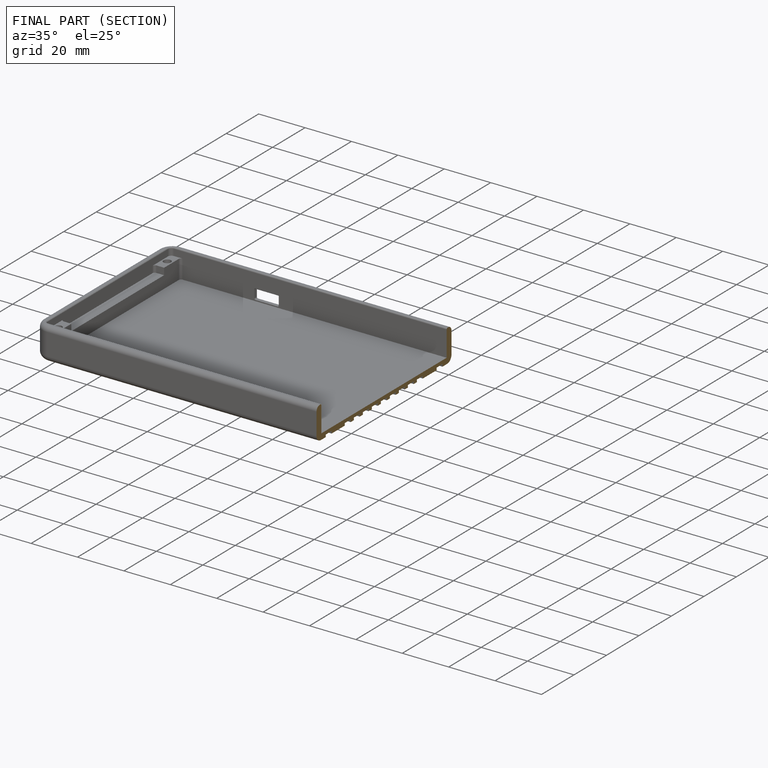
[diagram: finished part — half-section view (interior)]
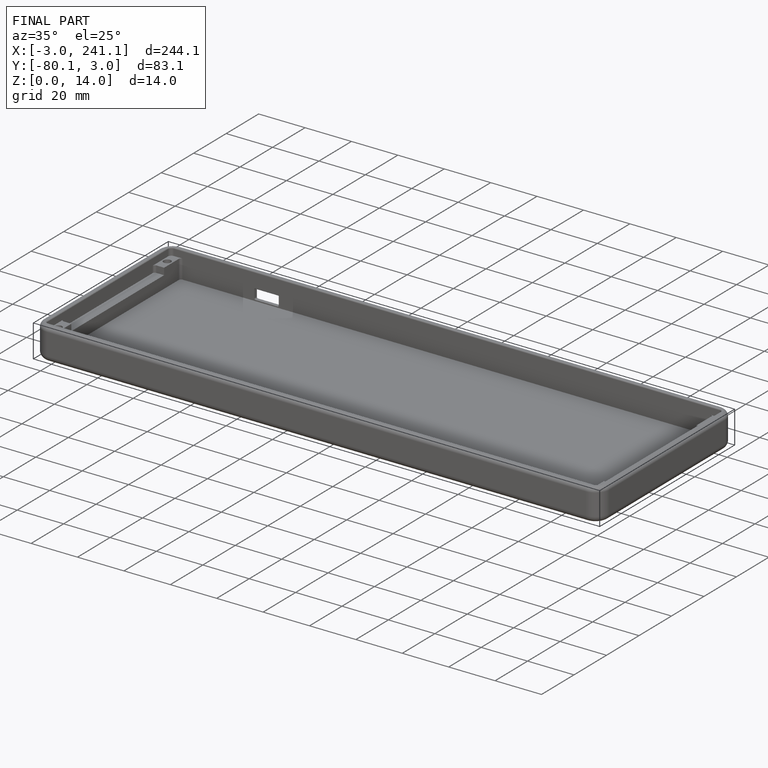
[diagram: finished part — iso view with bounding-box wireframe]
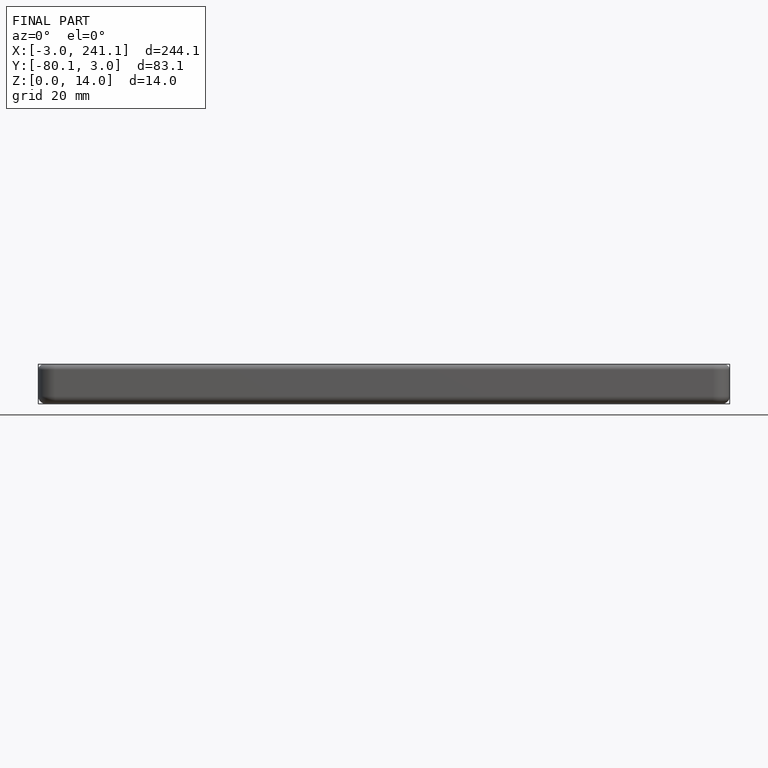
[diagram: finished part — front view with bounding-box wireframe]
